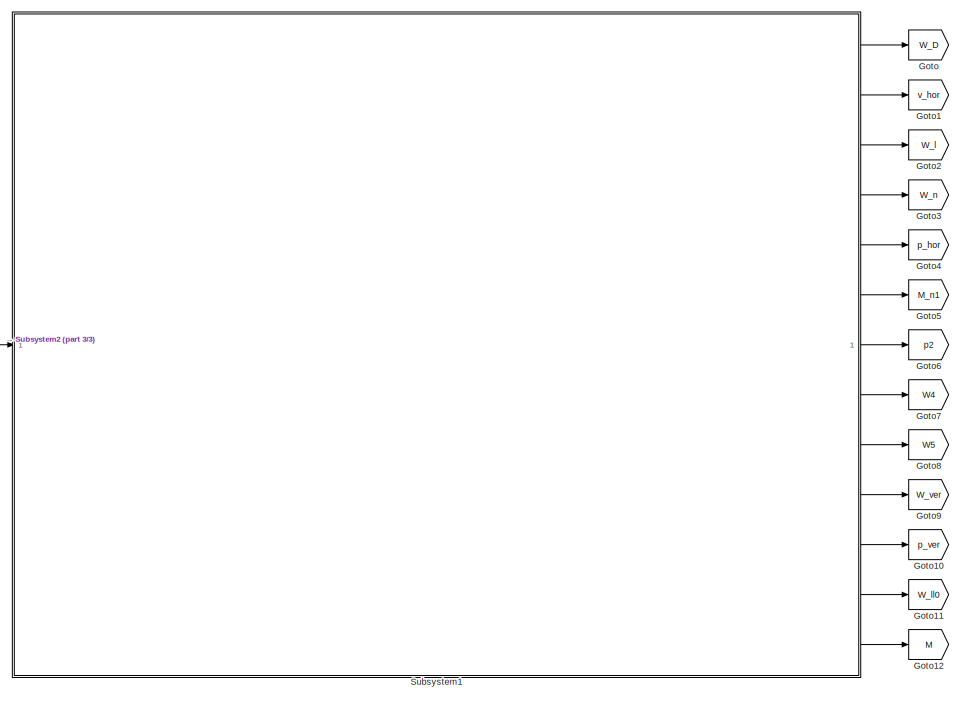
[diagram: root canvas - part 1/3, middle left region]
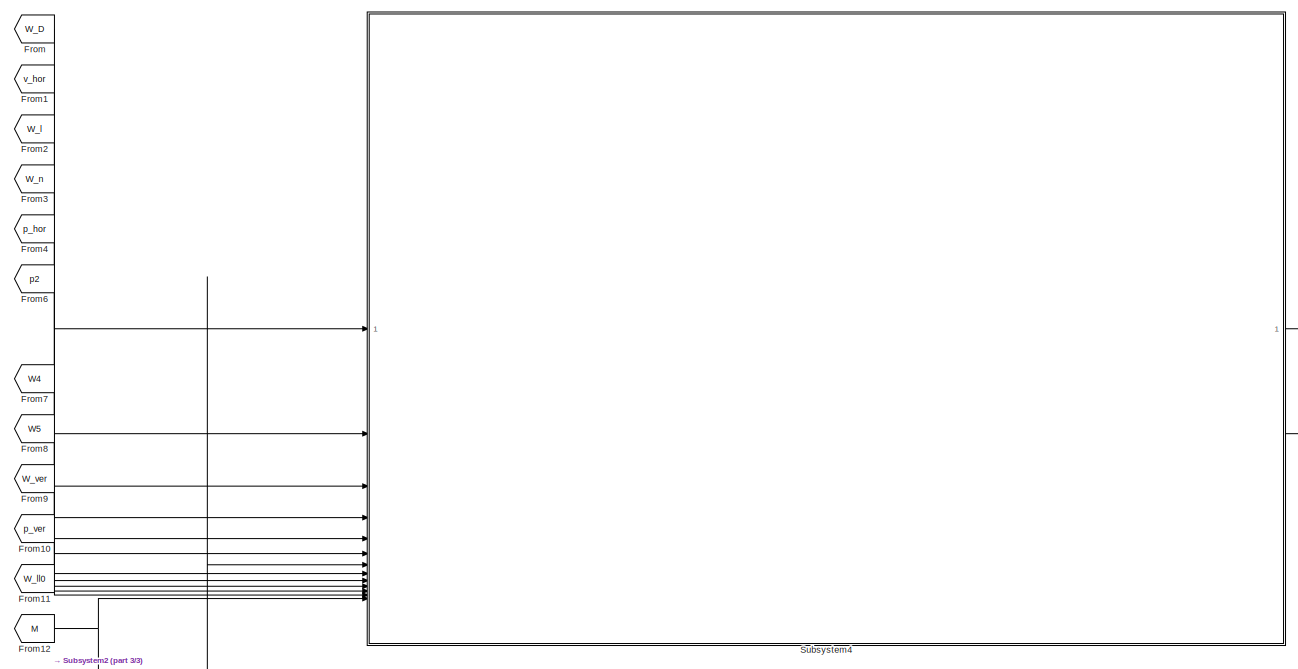
[diagram: root canvas - part 2/3, central region]
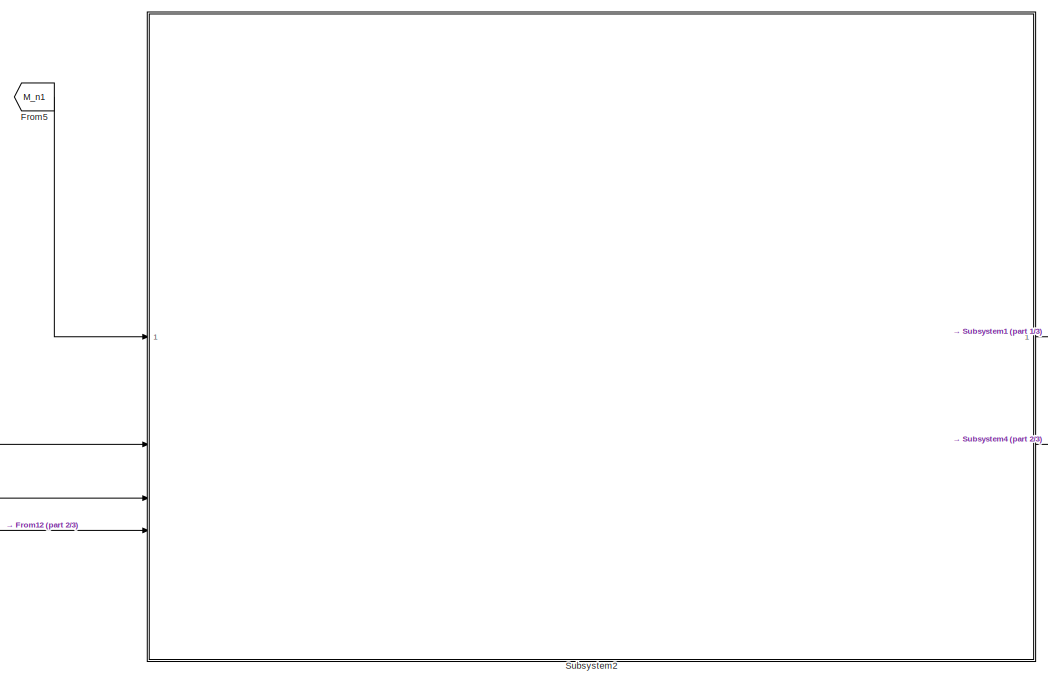
[diagram: root canvas - part 3/3, middle right region]
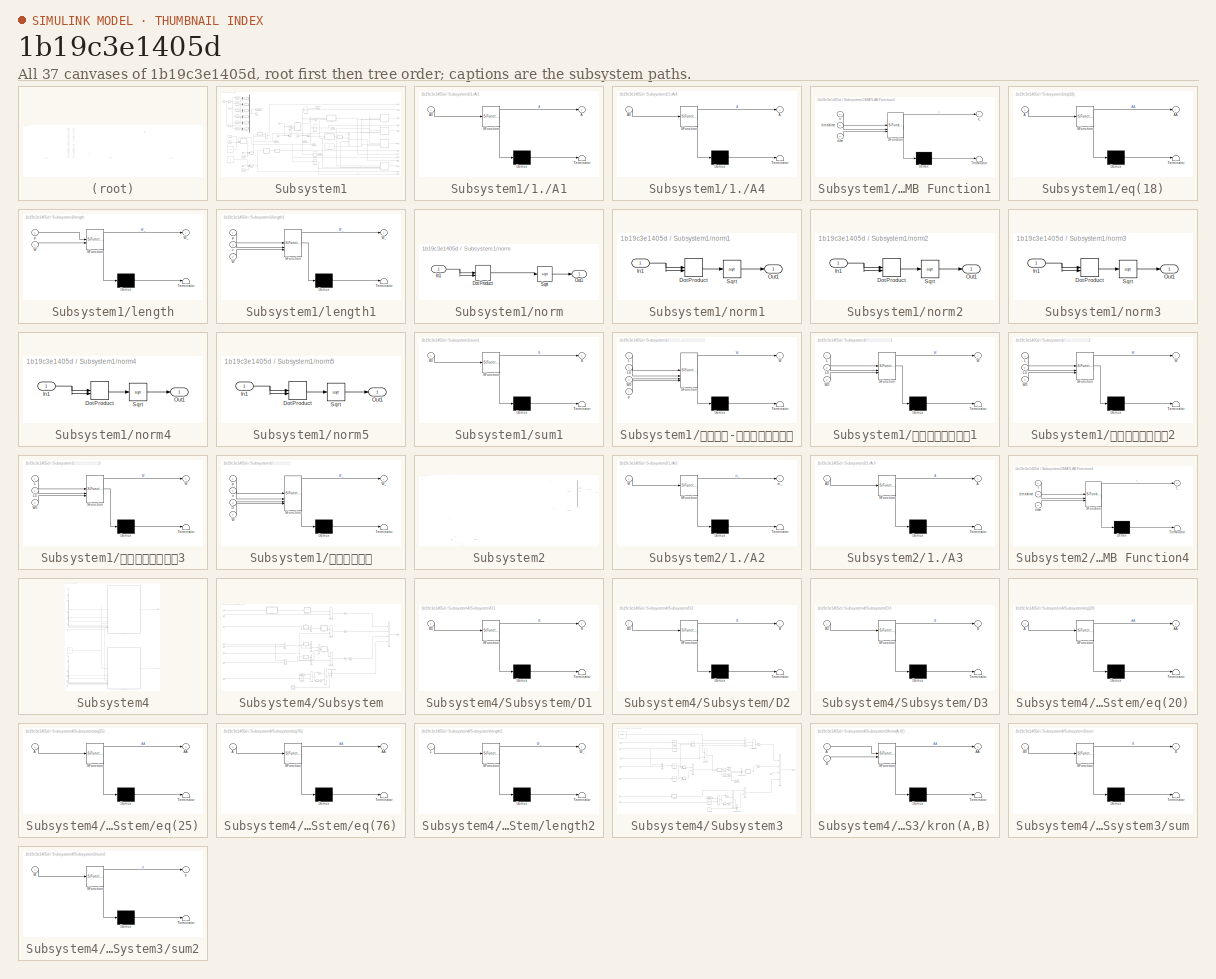
[diagram: thumbnail index - all 37 canvases of the model, root first then tree order]
MODEL slx_1b19c3e1405d
KIND model
CONFIG AbsTol = auto
CONFIG EnableMultiTasking = off
CONFIG FixedStep = 0.001
CONFIG MaxStep = auto
CONFIG MinStep = auto
CONFIG RelTol = 1e-3
CONFIG SampleTimeConstraint = Unconstrained
CONFIG SolverName = ode4
CONFIG StartTime = 0.0
CONFIG StopTime = 15
BLOCK [From] From
  GotoTag = W_D
BLOCK [From] From1
  GotoTag = v_hor
BLOCK [From] From10
  GotoTag = p_ver
BLOCK [From] From11
  GotoTag = W_ll0
BLOCK [From] From12
  GotoTag = M
BLOCK [From] From2
  GotoTag = W_l
BLOCK [From] From3
  GotoTag = W_n
BLOCK [From] From4
  GotoTag = p_hor
BLOCK [From] From5
  GotoTag = M_n1
BLOCK [From] From6
  GotoTag = p2
BLOCK [From] From7
  GotoTag = W4
BLOCK [From] From8
  GotoTag = W5
BLOCK [From] From9
  GotoTag = W_ver
BLOCK [Goto] Goto
  GotoTag = W_D
BLOCK [Goto] Goto1
  GotoTag = v_hor
BLOCK [Goto] Goto10
  GotoTag = p_ver
BLOCK [Goto] Goto11
  GotoTag = W_ll0
BLOCK [Goto] Goto12
  GotoTag = M
BLOCK [Goto] Goto2
  GotoTag = W_l
BLOCK [Goto] Goto3
  GotoTag = W_n
BLOCK [Goto] Goto4
  GotoTag = p_hor
BLOCK [Goto] Goto5
  GotoTag = M_n1
BLOCK [Goto] Goto6
  GotoTag = p2
BLOCK [Goto] Goto7
  GotoTag = W4
BLOCK [Goto] Goto8
  GotoTag = W5
BLOCK [Goto] Goto9
  GotoTag = W_ver
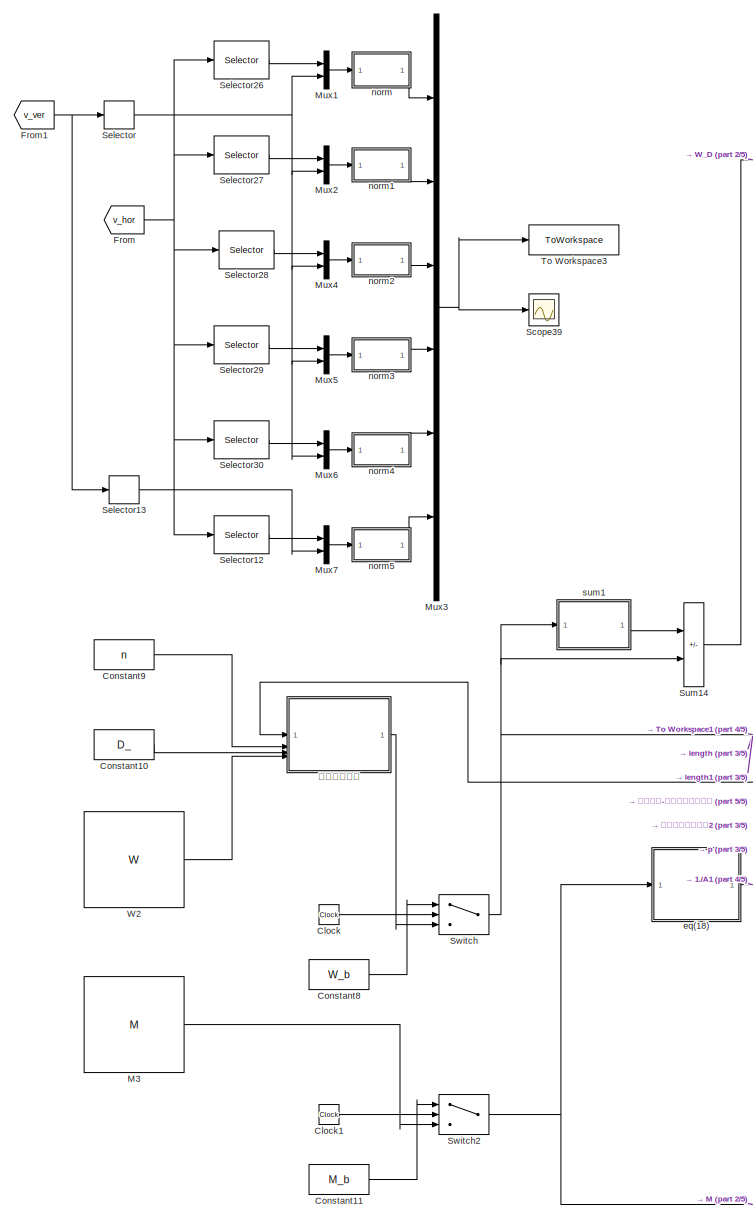
[diagram: Subsystem1 - part 1/5, left side, full height]
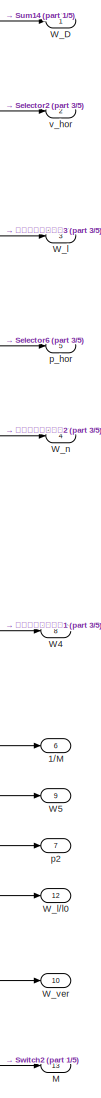
[diagram: Subsystem1 - part 2/5, right side, full height]
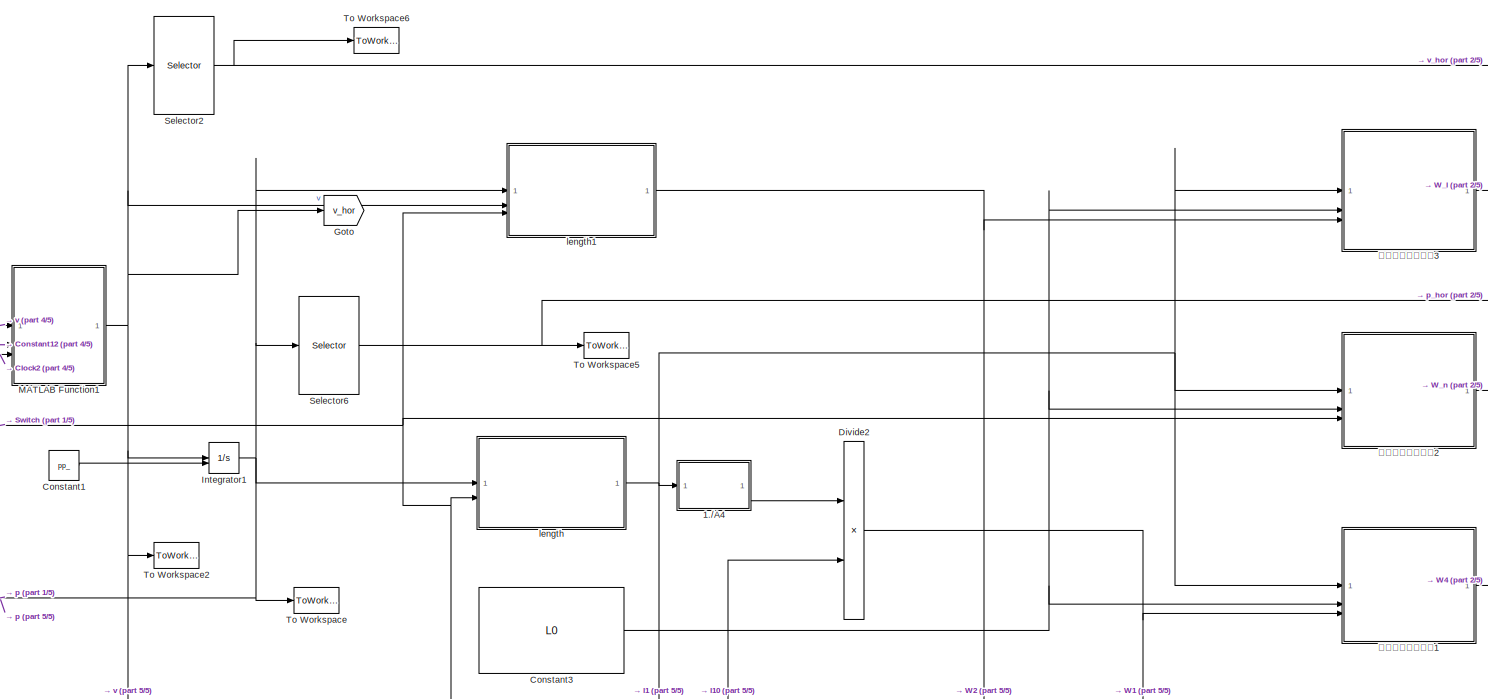
[diagram: Subsystem1 - part 3/5, middle right region]
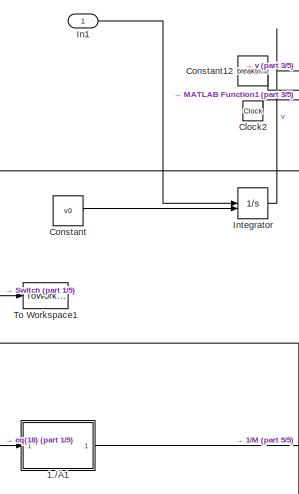
[diagram: Subsystem1 - part 4/5, central region]
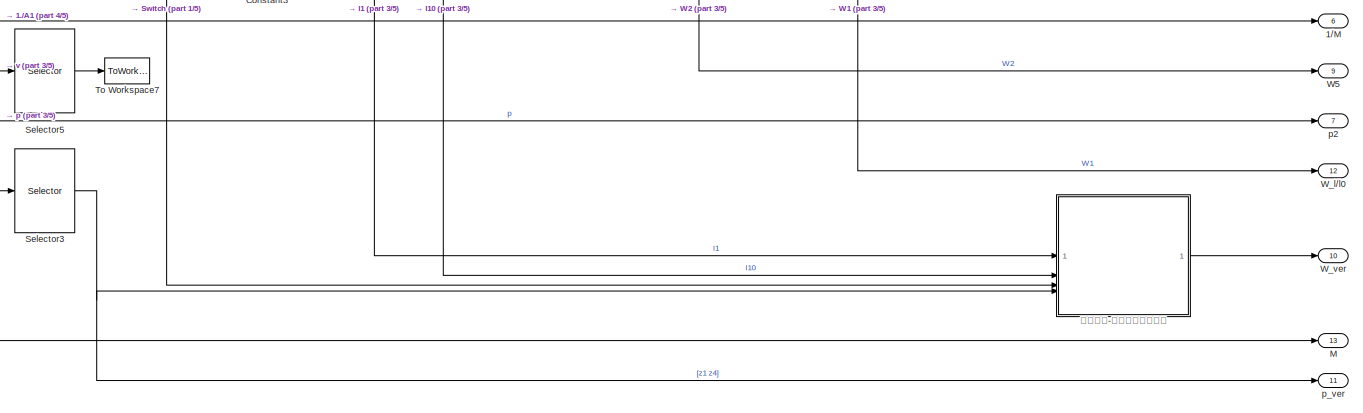
[diagram: Subsystem1 - part 5/5, bottom right region]
BLOCK [SubSystem] Subsystem1
BLOCK [SubSystem] Subsystem1/1.//A1
  ErrorFcn = Stateflow.Translate.translate
  PermitHierarchicalResolution = ExplicitOnly
  SFBlockType = MATLAB Function
  TreatAsAtomicUnit = on
BLOCK [Demux] Subsystem1/1.//A1/ Demux 
  Outputs = 1
BLOCK [S-Function] Subsystem1/1.//A1/ SFunction 
  EnableBusSupport = on
  FunctionName = sf_sfun
  PortCounts = [1 2]
  SFcnIsStateOwnerBlock = off
  SFunctionDeploymentMode = off
  Tag = Stateflow S-Function 4
BLOCK [Terminator] Subsystem1/1.//A1/ Terminator 
BLOCK [Outport] Subsystem1/1.//A1/A
BLOCK [Inport] Subsystem1/1.//A1/A0
BLOCK [SubSystem] Subsystem1/1.//A4
  ErrorFcn = Stateflow.Translate.translate
  PermitHierarchicalResolution = ExplicitOnly
  SFBlockType = MATLAB Function
  TreatAsAtomicUnit = on
BLOCK [Demux] Subsystem1/1.//A4/ Demux 
  Outputs = 1
BLOCK [S-Function] Subsystem1/1.//A4/ SFunction 
  EnableBusSupport = on
  FunctionName = sf_sfun
  PortCounts = [1 2]
  SFcnIsStateOwnerBlock = off
  SFunctionDeploymentMode = off
  Tag = Stateflow S-Function 3
BLOCK [Terminator] Subsystem1/1.//A4/ Terminator 
BLOCK [Outport] Subsystem1/1.//A4/A
BLOCK [Inport] Subsystem1/1.//A4/A0
BLOCK [Outport] Subsystem1/1//M
  Port = 6
BLOCK [Clock] Subsystem1/Clock
BLOCK [Clock] Subsystem1/Clock1
BLOCK [Clock] Subsystem1/Clock2
BLOCK [Constant] Subsystem1/Constant
  Value = v0
BLOCK [Constant] Subsystem1/Constant1
  Value = pp_
BLOCK [Constant] Subsystem1/Constant10
  Value = D_
BLOCK [Constant] Subsystem1/Constant11
  Value = M_b
BLOCK [Constant] Subsystem1/Constant12
  Value = breaktime
BLOCK [Constant] Subsystem1/Constant3
  Value = L0
BLOCK [Constant] Subsystem1/Constant8
  Value = W_b
BLOCK [Constant] Subsystem1/Constant9
  Value = n
BLOCK [Product] Subsystem1/Divide2
  Inputs = **
BLOCK [From] Subsystem1/From
  GotoTag = v_hor
BLOCK [From] Subsystem1/From1
  GotoTag = v_ver
BLOCK [Goto] Subsystem1/Goto
  GotoTag = v_hor
BLOCK [Inport] Subsystem1/In1
BLOCK [Integrator] Subsystem1/Integrator
  InitialConditionSource = external
BLOCK [Integrator] Subsystem1/Integrator1
  InitialConditionSource = external
BLOCK [Outport] Subsystem1/M
  Port = 13
BLOCK [Constant] Subsystem1/M3
  Value = M
BLOCK [SubSystem] Subsystem1/MATLAB Function1
  ErrorFcn = Stateflow.Translate.translate
  PermitHierarchicalResolution = ExplicitOnly
  SFBlockType = MATLAB Function
  TreatAsAtomicUnit = on
BLOCK [Demux] Subsystem1/MATLAB Function1/ Demux 
  Outputs = 1
BLOCK [S-Function] Subsystem1/MATLAB Function1/ SFunction 
  EnableBusSupport = on
  FunctionName = sf_sfun
  PortCounts = [3 2]
  SFcnIsStateOwnerBlock = off
  SFunctionDeploymentMode = off
  Tag = Stateflow S-Function 24
BLOCK [Terminator] Subsystem1/MATLAB Function1/ Terminator 
BLOCK [Inport] Subsystem1/MATLAB Function1/breaktime
  Port = 2
BLOCK [Inport] Subsystem1/MATLAB Function1/time
  Port = 3
BLOCK [Inport] Subsystem1/MATLAB Function1/v
BLOCK [Outport] Subsystem1/MATLAB Function1/v_
BLOCK [Mux] Subsystem1/Mux1
  DisplayOption = bar
  Inputs = 2
BLOCK [Mux] Subsystem1/Mux2
  DisplayOption = bar
  Inputs = 2
BLOCK [Mux] Subsystem1/Mux3
  DisplayOption = bar
  Inputs = 6
BLOCK [Mux] Subsystem1/Mux4
  DisplayOption = bar
  Inputs = 2
BLOCK [Mux] Subsystem1/Mux5
  DisplayOption = bar
  Inputs = 2
BLOCK [Mux] Subsystem1/Mux6
  DisplayOption = bar
  Inputs = 2
BLOCK [Mux] Subsystem1/Mux7
  DisplayOption = bar
  Inputs = 2
BLOCK [Scope] Subsystem1/Scope39
  Floating = off
  NumInputPorts = 1
  ScopeSpecificationString = Simulink.scopes.TimeScopeBlockCfg('CurrentConfiguration', extmgr.ConfigurationSet(extmgr.Configuration('Core','General UI',true),extmgr.Configuration('Core','Source UI',true),extmgr.Configuration('Sources','WiredSimulink',true,'DataLoggingVariableName','ScopeData1'),extmgr.Configuration('Visuals','Time Domain',true,'SerializedDisplays',{struct('MinYLimReal','-0.25448','MaxYLimReal','2.29035','YLab...<+1643ch>
BLOCK [Selector] Subsystem1/Selector
  IndexOptions = Index vector (dialog)
  Indices = 1
  InputPortWidth = 2
  OutputSizes = 1
BLOCK [Selector] Subsystem1/Selector12
  IndexOptions = Index vector (dialog)
  Indices = [13,14]
  InputPortWidth = 2*n+2
  OutputSizes = 1
BLOCK [Selector] Subsystem1/Selector13
  IndexOptions = Index vector (dialog)
  Indices = 2
  InputPortWidth = 2
  OutputSizes = 1
BLOCK [Selector] Subsystem1/Selector2
  IndexOptions = Index vector (dialog)
  Indices = [1:2*n]
  InputPortWidth = 2*n+2
  OutputSizes = 1
BLOCK [Selector] Subsystem1/Selector26
  IndexOptions = Index vector (dialog)
  Indices = [3,4]
  InputPortWidth = 2*n+2
  OutputSizes = 1
BLOCK [Selector] Subsystem1/Selector27
  IndexOptions = Index vector (dialog)
  Indices = [5,6]
  InputPortWidth = 2*n+2
  OutputSizes = 1
BLOCK [Selector] Subsystem1/Selector28
  IndexOptions = Index vector (dialog)
  Indices = [7,8]
  InputPortWidth = 2*n+2
  OutputSizes = 1
BLOCK [Selector] Subsystem1/Selector29
  IndexOptions = Index vector (dialog)
  Indices = [9,10]
  InputPortWidth = 2*n+2
  OutputSizes = 1
BLOCK [Selector] Subsystem1/Selector3
  IndexOptions = Index vector (dialog)
  Indices = [2*n+1 2*n+2]
  InputPortWidth = 2*n+2
  OutputSizes = 1
BLOCK [Selector] Subsystem1/Selector30
  IndexOptions = Index vector (dialog)
  Indices = [11,12]
  InputPortWidth = 2*n+2
  OutputSizes = 1
BLOCK [Selector] Subsystem1/Selector5
  IndexOptions = Index vector (dialog)
  Indices = [2*n+1 2*n+2]
  InputPortWidth = 2*n+2
  OutputSizes = 1
BLOCK [Selector] Subsystem1/Selector6
  IndexOptions = Index vector (dialog)
  Indices = [1:2*n]
  InputPortWidth = 2*n+2
  OutputSizes = 1
BLOCK [Sum] Subsystem1/Sum14
  IconShape = rectangular
  Inputs = +-
BLOCK [Switch] Subsystem1/Switch
  Criteria = u2 > Threshold
  InputSameDT = off
  SaturateOnIntegerOverflow = off
  Threshold = breaktime
BLOCK [Switch] Subsystem1/Switch2
  Criteria = u2 > Threshold
  InputSameDT = off
  SaturateOnIntegerOverflow = off
  Threshold = breaktime
BLOCK [ToWorkspace] Subsystem1/To Workspace
  FixptAsFi = on
  MaxDataPoints = inf
  SampleTime = -1
  SaveFormat = Timeseries
  VariableName = p
BLOCK [ToWorkspace] Subsystem1/To Workspace1
  FixptAsFi = on
  MaxDataPoints = inf
  SampleTime = -1
  SaveFormat = Timeseries
  VariableName = W
BLOCK [ToWorkspace] Subsystem1/To Workspace2
  FixptAsFi = on
  MaxDataPoints = inf
  SampleTime = -1
  SaveFormat = Timeseries
  VariableName = v
BLOCK [ToWorkspace] Subsystem1/To Workspace3
  FixptAsFi = on
  MaxDataPoints = inf
  SampleTime = -1
  SaveFormat = Timeseries
  VariableName = v_norm
BLOCK [ToWorkspace] Subsystem1/To Workspace5
  FixptAsFi = on
  MaxDataPoints = inf
  SampleTime = -1
  SaveFormat = Timeseries
  VariableName = position
BLOCK [ToWorkspace] Subsystem1/To Workspace6
  FixptAsFi = on
  MaxDataPoints = inf
  SampleTime = -1
  SaveFormat = Timeseries
  VariableName = velocity_h
BLOCK [ToWorkspace] Subsystem1/To Workspace7
  FixptAsFi = on
  MaxDataPoints = inf
  SampleTime = -1
  SaveFormat = Timeseries
  VariableName = velocity_v
BLOCK [Constant] Subsystem1/W2
  Value = W
BLOCK [Outport] Subsystem1/W4
  Port = 8
BLOCK [Outport] Subsystem1/W5
  Port = 9
BLOCK [Outport] Subsystem1/W_D
BLOCK [Outport] Subsystem1/W_l
  Port = 3
BLOCK [Outport] Subsystem1/W_l//l0
  Port = 12
BLOCK [Outport] Subsystem1/W_n
  Port = 4
BLOCK [Outport] Subsystem1/W_ver
  Port = 10
BLOCK [SubSystem] Subsystem1/eq(18)
  ErrorFcn = Stateflow.Translate.translate
  PermitHierarchicalResolution = ExplicitOnly
  SFBlockType = MATLAB Function
  TreatAsAtomicUnit = on
BLOCK [Demux] Subsystem1/eq(18)/ Demux 
  Outputs = 1
BLOCK [S-Function] Subsystem1/eq(18)/ SFunction 
  EnableBusSupport = on
  FunctionName = sf_sfun
  PortCounts = [1 2]
  SFcnIsStateOwnerBlock = off
  SFunctionDeploymentMode = off
  Tag = Stateflow S-Function 7
BLOCK [Terminator] Subsystem1/eq(18)/ Terminator 
BLOCK [Inport] Subsystem1/eq(18)/A
BLOCK [Outport] Subsystem1/eq(18)/AA
BLOCK [SubSystem] Subsystem1/length
  ErrorFcn = Stateflow.Translate.translate
  PermitHierarchicalResolution = ExplicitOnly
  SFBlockType = MATLAB Function
  TreatAsAtomicUnit = on
BLOCK [Demux] Subsystem1/length/ Demux 
  Outputs = 1
BLOCK [S-Function] Subsystem1/length/ SFunction 
  EnableBusSupport = on
  FunctionName = sf_sfun
  PortCounts = [2 2]
  SFcnIsStateOwnerBlock = off
  SFunctionDeploymentMode = off
  Tag = Stateflow S-Function 1
BLOCK [Terminator] Subsystem1/length/ Terminator 
BLOCK [Inport] Subsystem1/length/W
  Port = 2
BLOCK [Outport] Subsystem1/length/W_
BLOCK [Inport] Subsystem1/length/p
BLOCK [SubSystem] Subsystem1/length1
  ErrorFcn = Stateflow.Translate.translate
  PermitHierarchicalResolution = ExplicitOnly
  SFBlockType = MATLAB Function
  TreatAsAtomicUnit = on
BLOCK [Demux] Subsystem1/length1/ Demux 
  Outputs = 1
BLOCK [S-Function] Subsystem1/length1/ SFunction 
  EnableBusSupport = on
  FunctionName = sf_sfun
  PortCounts = [3 2]
  SFcnIsStateOwnerBlock = off
  SFunctionDeploymentMode = off
  Tag = Stateflow S-Function 5
BLOCK [Terminator] Subsystem1/length1/ Terminator 
BLOCK [Inport] Subsystem1/length1/W
  Port = 3
BLOCK [Outport] Subsystem1/length1/W_
BLOCK [Inport] Subsystem1/length1/p
BLOCK [Inport] Subsystem1/length1/v
  Port = 2
BLOCK [SubSystem] Subsystem1/norm
BLOCK [DotProduct] Subsystem1/norm/Dot Product
  OutDataTypeStr = Inherit: Inherit via internal rule
BLOCK [Inport] Subsystem1/norm/In1
BLOCK [Outport] Subsystem1/norm/Out1
BLOCK [Sqrt] Subsystem1/norm/Sqrt
BLOCK [SubSystem] Subsystem1/norm1
BLOCK [DotProduct] Subsystem1/norm1/Dot Product
  OutDataTypeStr = Inherit: Inherit via internal rule
BLOCK [Inport] Subsystem1/norm1/In1
BLOCK [Outport] Subsystem1/norm1/Out1
BLOCK [Sqrt] Subsystem1/norm1/Sqrt
BLOCK [SubSystem] Subsystem1/norm2
BLOCK [DotProduct] Subsystem1/norm2/Dot Product
  OutDataTypeStr = Inherit: Inherit via internal rule
BLOCK [Inport] Subsystem1/norm2/In1
BLOCK [Outport] Subsystem1/norm2/Out1
BLOCK [Sqrt] Subsystem1/norm2/Sqrt
BLOCK [SubSystem] Subsystem1/norm3
BLOCK [DotProduct] Subsystem1/norm3/Dot Product
  OutDataTypeStr = Inherit: Inherit via internal rule
BLOCK [Inport] Subsystem1/norm3/In1
BLOCK [Outport] Subsystem1/norm3/Out1
BLOCK [Sqrt] Subsystem1/norm3/Sqrt
BLOCK [SubSystem] Subsystem1/norm4
BLOCK [DotProduct] Subsystem1/norm4/Dot Product
  OutDataTypeStr = Inherit: Inherit via internal rule
BLOCK [Inport] Subsystem1/norm4/In1
BLOCK [Outport] Subsystem1/norm4/Out1
BLOCK [Sqrt] Subsystem1/norm4/Sqrt
BLOCK [SubSystem] Subsystem1/norm5
BLOCK [DotProduct] Subsystem1/norm5/Dot Product
  OutDataTypeStr = Inherit: Inherit via internal rule
BLOCK [Inport] Subsystem1/norm5/In1
BLOCK [Outport] Subsystem1/norm5/Out1
BLOCK [Sqrt] Subsystem1/norm5/Sqrt
BLOCK [Outport] Subsystem1/p2
  Port = 7
BLOCK [Outport] Subsystem1/p_hor
  Port = 5
BLOCK [Outport] Subsystem1/p_ver
  Port = 11
BLOCK [SubSystem] Subsystem1/sum1
  ErrorFcn = Stateflow.Translate.translate
  PermitHierarchicalResolution = ExplicitOnly
  SFBlockType = MATLAB Function
  TreatAsAtomicUnit = on
BLOCK [Demux] Subsystem1/sum1/ Demux 
  Outputs = 1
BLOCK [S-Function] Subsystem1/sum1/ SFunction 
  EnableBusSupport = on
  FunctionName = sf_sfun
  PortCounts = [1 2]
  SFcnIsStateOwnerBlock = off
  SFunctionDeploymentMode = off
  Tag = Stateflow S-Function 22
BLOCK [Terminator] Subsystem1/sum1/ Terminator 
BLOCK [Outport] Subsystem1/sum1/B
BLOCK [Inport] Subsystem1/sum1/B0
BLOCK [Outport] Subsystem1/v_hor
  Port = 2
BLOCK [SubSystem] Subsystem1/吊挂弹簧-负形变量限制模块
  ErrorFcn = Stateflow.Translate.translate
  PermitHierarchicalResolution = ExplicitOnly
  SFBlockType = MATLAB Function
  TreatAsAtomicUnit = on
BLOCK [Demux] Subsystem1/吊挂弹簧-负形变量限制模块/ Demux 
  Outputs = 1
BLOCK [S-Function] Subsystem1/吊挂弹簧-负形变量限制模块/ SFunction 
  EnableBusSupport = on
  FunctionName = sf_sfun
  PortCounts = [4 2]
  SFcnIsStateOwnerBlock = off
  SFunctionDeploymentMode = off
  Tag = Stateflow S-Function 13
BLOCK [Terminator] Subsystem1/吊挂弹簧-负形变量限制模块/ Terminator 
BLOCK [Inport] Subsystem1/吊挂弹簧-负形变量限制模块/L
BLOCK [Inport] Subsystem1/吊挂弹簧-负形变量限制模块/L0
  Port = 2
BLOCK [Outport] Subsystem1/吊挂弹簧-负形变量限制模块/W
BLOCK [Inport] Subsystem1/吊挂弹簧-负形变量限制模块/W0
  Port = 3
BLOCK [Inport] Subsystem1/吊挂弹簧-负形变量限制模块/p
  Port = 4
BLOCK [SubSystem] Subsystem1/负形变量限制模块1
  ErrorFcn = Stateflow.Translate.translate
  PermitHierarchicalResolution = ExplicitOnly
  SFBlockType = MATLAB Function
  TreatAsAtomicUnit = on
BLOCK [Demux] Subsystem1/负形变量限制模块1/ Demux 
  Outputs = 1
BLOCK [S-Function] Subsystem1/负形变量限制模块1/ SFunction 
  EnableBusSupport = on
  FunctionName = sf_sfun
  PortCounts = [3 2]
  SFcnIsStateOwnerBlock = off
  SFunctionDeploymentMode = off
  Tag = Stateflow S-Function 14
BLOCK [Terminator] Subsystem1/负形变量限制模块1/ Terminator 
BLOCK [Inport] Subsystem1/负形变量限制模块1/L
BLOCK [Inport] Subsystem1/负形变量限制模块1/L0
  Port = 2
BLOCK [Outport] Subsystem1/负形变量限制模块1/W
BLOCK [Inport] Subsystem1/负形变量限制模块1/W0
  Port = 3
BLOCK [SubSystem] Subsystem1/负形变量限制模块2
  ErrorFcn = Stateflow.Translate.translate
  PermitHierarchicalResolution = ExplicitOnly
  SFBlockType = MATLAB Function
  TreatAsAtomicUnit = on
BLOCK [Demux] Subsystem1/负形变量限制模块2/ Demux 
  Outputs = 1
BLOCK [S-Function] Subsystem1/负形变量限制模块2/ SFunction 
  EnableBusSupport = on
  FunctionName = sf_sfun
  PortCounts = [3 2]
  SFcnIsStateOwnerBlock = off
  SFunctionDeploymentMode = off
  Tag = Stateflow S-Function 16
BLOCK [Terminator] Subsystem1/负形变量限制模块2/ Terminator 
BLOCK [Inport] Subsystem1/负形变量限制模块2/L
BLOCK [Inport] Subsystem1/负形变量限制模块2/L0
  Port = 2
BLOCK [Outport] Subsystem1/负形变量限制模块2/W
BLOCK [Inport] Subsystem1/负形变量限制模块2/W0
  Port = 3
BLOCK [SubSystem] Subsystem1/负形变量限制模块3
  ErrorFcn = Stateflow.Translate.translate
  PermitHierarchicalResolution = ExplicitOnly
  SFBlockType = MATLAB Function
  TreatAsAtomicUnit = on
BLOCK [Demux] Subsystem1/负形变量限制模块3/ Demux 
  Outputs = 1
BLOCK [S-Function] Subsystem1/负形变量限制模块3/ SFunction 
  EnableBusSupport = on
  FunctionName = sf_sfun
  PortCounts = [3 2]
  SFcnIsStateOwnerBlock = off
  SFunctionDeploymentMode = off
  Tag = Stateflow S-Function 17
BLOCK [Terminator] Subsystem1/负形变量限制模块3/ Terminator 
BLOCK [Inport] Subsystem1/负形变量限制模块3/L
BLOCK [Inport] Subsystem1/负形变量限制模块3/L0
  Port = 2
BLOCK [Outport] Subsystem1/负形变量限制模块3/W
BLOCK [Inport] Subsystem1/负形变量限制模块3/W0
  Port = 3
BLOCK [SubSystem] Subsystem1/距离矩阵计算
  ErrorFcn = Stateflow.Translate.translate
  PermitHierarchicalResolution = ExplicitOnly
  SFBlockType = MATLAB Function
  TreatAsAtomicUnit = on
BLOCK [Demux] Subsystem1/距离矩阵计算/ Demux 
  Outputs = 1
BLOCK [S-Function] Subsystem1/距离矩阵计算/ SFunction 
  EnableBusSupport = on
  FunctionName = sf_sfun
  PortCounts = [4 2]
  SFcnIsStateOwnerBlock = off
  SFunctionDeploymentMode = off
  Tag = Stateflow S-Function 21
BLOCK [Terminator] Subsystem1/距离矩阵计算/ Terminator 
BLOCK [Inport] Subsystem1/距离矩阵计算/D
  Port = 3
BLOCK [Inport] Subsystem1/距离矩阵计算/W
  Port = 4
BLOCK [Outport] Subsystem1/距离矩阵计算/W_
BLOCK [Inport] Subsystem1/距离矩阵计算/n
  Port = 2
BLOCK [Inport] Subsystem1/距离矩阵计算/p
BLOCK [SubSystem] Subsystem2
BLOCK [Outport] Subsystem2/-重力
  Port = 2
BLOCK [SubSystem] Subsystem2/1.//A2
  ErrorFcn = Stateflow.Translate.translate
  PermitHierarchicalResolution = ExplicitOnly
  SFBlockType = MATLAB Function
  TreatAsAtomicUnit = on
BLOCK [Demux] Subsystem2/1.//A2/ Demux 
  Outputs = 1
BLOCK [S-Function] Subsystem2/1.//A2/ SFunction 
  EnableBusSupport = on
  FunctionName = sf_sfun
  PortCounts = [1 2]
  SFcnIsStateOwnerBlock = off
  SFunctionDeploymentMode = off
  Tag = Stateflow S-Function 23
BLOCK [Terminator] Subsystem2/1.//A2/ Terminator 
BLOCK [Inport] Subsystem2/1.//A2/M
BLOCK [Outport] Subsystem2/1.//A2/m_
BLOCK [SubSystem] Subsystem2/1.//A3
  ErrorFcn = Stateflow.Translate.translate
  PermitHierarchicalResolution = ExplicitOnly
  SFBlockType = MATLAB Function
  TreatAsAtomicUnit = on
BLOCK [Demux] Subsystem2/1.//A3/ Demux 
  Outputs = 1
BLOCK [S-Function] Subsystem2/1.//A3/ SFunction 
  EnableBusSupport = on
  FunctionName = sf_sfun
  PortCounts = [1 2]
  SFcnIsStateOwnerBlock = off
  SFunctionDeploymentMode = off
  Tag = Stateflow S-Function 8
BLOCK [Terminator] Subsystem2/1.//A3/ Terminator 
BLOCK [Outport] Subsystem2/1.//A3/A
BLOCK [Inport] Subsystem2/1.//A3/A0
BLOCK [Clock] Subsystem2/Clock3
BLOCK [Constant] Subsystem2/Constant5
  Value = breaktime
BLOCK [Inport] Subsystem2/F合力
  Port = 3
BLOCK [Inport] Subsystem2/In1
BLOCK [Inport] Subsystem2/In2
  Port = 2
BLOCK [Inport] Subsystem2/M
  Port = 4
BLOCK [SubSystem] Subsystem2/MATLAB Function4
  ErrorFcn = Stateflow.Translate.translate
  PermitHierarchicalResolution = ExplicitOnly
  SFBlockType = MATLAB Function
  TreatAsAtomicUnit = on
BLOCK [Demux] Subsystem2/MATLAB Function4/ Demux 
  Outputs = 1
BLOCK [S-Function] Subsystem2/MATLAB Function4/ SFunction 
  EnableBusSupport = on
  FunctionName = sf_sfun
  PortCounts = [3 2]
  SFcnIsStateOwnerBlock = off
  SFunctionDeploymentMode = off
  Tag = Stateflow S-Function 18
BLOCK [Terminator] Subsystem2/MATLAB Function4/ Terminator 
BLOCK [Inport] Subsystem2/MATLAB Function4/breaktime
  Port = 2
BLOCK [Inport] Subsystem2/MATLAB Function4/f
BLOCK [Outport] Subsystem2/MATLAB Function4/f_
BLOCK [Inport] Subsystem2/MATLAB Function4/time
  Port = 3
BLOCK [Product] Subsystem2/Matrix Multiply13
  Multiplication = Matrix(*)
BLOCK [Product] Subsystem2/Matrix Multiply14
  Multiplication = Matrix(*)
BLOCK [Product] Subsystem2/Matrix Multiply6
  Multiplication = Matrix(*)
BLOCK [Mux] Subsystem2/Mux
  DisplayOption = bar
  Inputs = 2
BLOCK [Scope] Subsystem2/Scope6
  Floating = off
  NumInputPorts = 1
  ScopeSpecificationString = Simulink.scopes.TimeScopeBlockCfg('CurrentConfiguration', extmgr.ConfigurationSet(extmgr.Configuration('Core','General UI',true),extmgr.Configuration('Core','Source UI',true),extmgr.Configuration('Sources','WiredSimulink',true,'DataLoggingVariableName','ScopeData1'),extmgr.Configuration('Visuals','Time Domain',true,'SerializedDisplays',{struct('MinYLimReal','-164.88947','MaxYLimReal','324.0062','Y...<+1798ch>
BLOCK [Outport] Subsystem2/f_
BLOCK [Constant] Subsystem2/g
  Value = g*[-1;-1]
BLOCK [SubSystem] Subsystem4
BLOCK [Outport] Subsystem4/F合力
  Port = 2
BLOCK [Inport] Subsystem4/In10
  Port = 10
BLOCK [Inport] Subsystem4/In11
  Port = 11
BLOCK [Inport] Subsystem4/In12
  Port = 12
BLOCK [Inport] Subsystem4/In2
  Port = 2
BLOCK [Inport] Subsystem4/In3
  Port = 3
BLOCK [Inport] Subsystem4/In4
  Port = 4
BLOCK [Inport] Subsystem4/In5
  Port = 5
BLOCK [Inport] Subsystem4/In6
  Port = 6
BLOCK [Inport] Subsystem4/In7
  Port = 7
BLOCK [Inport] Subsystem4/In8
  Port = 8
BLOCK [Inport] Subsystem4/In9
  Port = 9
BLOCK [Constant] Subsystem4/K
  Value = K
BLOCK [Inport] Subsystem4/L
BLOCK [Inport] Subsystem4/M
  Port = 13
BLOCK [Outport] Subsystem4/Out1
BLOCK [SubSystem] Subsystem4/Subsystem
BLOCK [Constant] Subsystem4/Subsystem/Constant4
  Value = zeros(2*n-2,1)
BLOCK [SubSystem] Subsystem4/Subsystem/D1
  ErrorFcn = Stateflow.Translate.translate
  PermitHierarchicalResolution = ExplicitOnly
  SFBlockType = MATLAB Function
  TreatAsAtomicUnit = on
BLOCK [Demux] Subsystem4/Subsystem/D1/ Demux 
  Outputs = 1
BLOCK [S-Function] Subsystem4/Subsystem/D1/ SFunction 
  EnableBusSupport = on
  FunctionName = sf_sfun
  PortCounts = [1 2]
  SFcnIsStateOwnerBlock = off
  SFunctionDeploymentMode = off
  Tag = Stateflow S-Function 11
BLOCK [Terminator] Subsystem4/Subsystem/D1/ Terminator 
BLOCK [Outport] Subsystem4/Subsystem/D1/B
BLOCK [Inport] Subsystem4/Subsystem/D1/B0
BLOCK [SubSystem] Subsystem4/Subsystem/D2
  ErrorFcn = Stateflow.Translate.translate
  PermitHierarchicalResolution = ExplicitOnly
  SFBlockType = MATLAB Function
  TreatAsAtomicUnit = on
BLOCK [Demux] Subsystem4/Subsystem/D2/ Demux 
  Outputs = 1
BLOCK [S-Function] Subsystem4/Subsystem/D2/ SFunction 
  EnableBusSupport = on
  FunctionName = sf_sfun
  PortCounts = [1 2]
  SFcnIsStateOwnerBlock = off
  SFunctionDeploymentMode = off
  Tag = Stateflow S-Function 6
BLOCK [Terminator] Subsystem4/Subsystem/D2/ Terminator 
BLOCK [Outport] Subsystem4/Subsystem/D2/B
BLOCK [Inport] Subsystem4/Subsystem/D2/B0
BLOCK [SubSystem] Subsystem4/Subsystem/D3
  ErrorFcn = Stateflow.Translate.translate
  PermitHierarchicalResolution = ExplicitOnly
  SFBlockType = MATLAB Function
  TreatAsAtomicUnit = on
BLOCK [Demux] Subsystem4/Subsystem/D3/ Demux 
  Outputs = 1
BLOCK [S-Function] Subsystem4/Subsystem/D3/ SFunction 
  EnableBusSupport = on
  FunctionName = sf_sfun
  PortCounts = [1 2]
  SFcnIsStateOwnerBlock = off
  SFunctionDeploymentMode = off
  Tag = Stateflow S-Function 15
BLOCK [Terminator] Subsystem4/Subsystem/D3/ Terminator 
BLOCK [Outport] Subsystem4/Subsystem/D3/B
BLOCK [Inport] Subsystem4/Subsystem/D3/B0
BLOCK [Derivative] Subsystem4/Subsystem/Derivative2
BLOCK [Product] Subsystem4/Subsystem/Divide5
  Inputs = **
BLOCK [Product] Subsystem4/Subsystem/Divide6
  Inputs = **
BLOCK [FromWorkspace] Subsystem4/Subsystem/From Workspace
  VariableName = pd_hor
BLOCK [Gain] Subsystem4/Subsystem/Gain
BLOCK [Gain] Subsystem4/Subsystem/Gain1
  Gain = 7
BLOCK [Gain] Subsystem4/Subsystem/Gain6
BLOCK [Gain] Subsystem4/Subsystem/Gain7
  Gain = 5
BLOCK [Inport] Subsystem4/Subsystem/In2
  Port = 2
BLOCK [Inport] Subsystem4/Subsystem/In3
  Port = 3
BLOCK [Inport] Subsystem4/Subsystem/In4
  Port = 4
BLOCK [Inport] Subsystem4/Subsystem/In5
  Port = 5
BLOCK [Inport] Subsystem4/Subsystem/In6
  Port = 6
BLOCK [Inport] Subsystem4/Subsystem/In7
  Port = 7
BLOCK [Inport] Subsystem4/Subsystem/In8
  Port = 8
BLOCK [Inport] Subsystem4/Subsystem/L
BLOCK [Product] Subsystem4/Subsystem/Matrix Multiply1
  Multiplication = Matrix(*)
BLOCK [Product] Subsystem4/Subsystem/Matrix Multiply4
  Multiplication = Matrix(*)
BLOCK [Product] Subsystem4/Subsystem/Matrix Multiply5
  Multiplication = Matrix(*)
BLOCK [Outport] Subsystem4/Subsystem/Out1
BLOCK [Saturate] Subsystem4/Subsystem/Saturation
  LowerLimit = -100
  UpperLimit = 100
BLOCK [Selector] Subsystem4/Subsystem/Selector4
  IndexOptions = Index vector (dialog)
  Indices = [1 2]
  InputPortWidth = 2*n+2
  OutputSizes = 1
BLOCK [Sum] Subsystem4/Subsystem/Sum10
  IconShape = rectangular
  Inputs = +-
BLOCK [Sum] Subsystem4/Subsystem/Sum2
  IconShape = rectangular
  Inputs = +-
BLOCK [Sum] Subsystem4/Subsystem/Sum3
  IconShape = rectangular
  Inputs = ---+
BLOCK [Sum] Subsystem4/Subsystem/Sum4
  IconShape = rectangular
  Inputs = +-
BLOCK [Sum] Subsystem4/Subsystem/Sum6
  IconShape = rectangular
BLOCK [Sum] Subsystem4/Subsystem/Sum8
  IconShape = rectangular
  Inputs = +-
BLOCK [Sum] Subsystem4/Subsystem/Sum9
  IconShape = rectangular
  Inputs = +-
BLOCK [Concatenate] Subsystem4/Subsystem/Vector Concatenate
BLOCK [SubSystem] Subsystem4/Subsystem/eq(20)
  ErrorFcn = Stateflow.Translate.translate
  PermitHierarchicalResolution = ExplicitOnly
  SFBlockType = MATLAB Function
  TreatAsAtomicUnit = on
BLOCK [Demux] Subsystem4/Subsystem/eq(20)/ Demux 
  Outputs = 1
BLOCK [S-Function] Subsystem4/Subsystem/eq(20)/ SFunction 
  EnableBusSupport = on
  FunctionName = sf_sfun
  PortCounts = [1 2]
  SFcnIsStateOwnerBlock = off
  SFunctionDeploymentMode = off
  Tag = Stateflow S-Function 9
BLOCK [Terminator] Subsystem4/Subsystem/eq(20)/ Terminator 
BLOCK [Inport] Subsystem4/Subsystem/eq(20)/A
BLOCK [Outport] Subsystem4/Subsystem/eq(20)/AA
BLOCK [SubSystem] Subsystem4/Subsystem/eq(25)
  ErrorFcn = Stateflow.Translate.translate
  PermitHierarchicalResolution = ExplicitOnly
  SFBlockType = MATLAB Function
  TreatAsAtomicUnit = on
BLOCK [Demux] Subsystem4/Subsystem/eq(25)/ Demux 
  Outputs = 1
BLOCK [S-Function] Subsystem4/Subsystem/eq(25)/ SFunction 
  EnableBusSupport = on
  FunctionName = sf_sfun
  PortCounts = [1 2]
  SFcnIsStateOwnerBlock = off
  SFunctionDeploymentMode = off
  Tag = Stateflow S-Function 10
BLOCK [Terminator] Subsystem4/Subsystem/eq(25)/ Terminator 
BLOCK [Inport] Subsystem4/Subsystem/eq(25)/A
BLOCK [Outport] Subsystem4/Subsystem/eq(25)/AA
BLOCK [SubSystem] Subsystem4/Subsystem/eq(76)
  ErrorFcn = Stateflow.Translate.translate
  PermitHierarchicalResolution = ExplicitOnly
  SFBlockType = MATLAB Function
  TreatAsAtomicUnit = on
BLOCK [Demux] Subsystem4/Subsystem/eq(76)/ Demux 
  Outputs = 1
BLOCK [S-Function] Subsystem4/Subsystem/eq(76)/ SFunction 
  EnableBusSupport = on
  FunctionName = sf_sfun
  PortCounts = [1 2]
  SFcnIsStateOwnerBlock = off
  SFunctionDeploymentMode = off
  Tag = Stateflow S-Function 12
BLOCK [Terminator] Subsystem4/Subsystem/eq(76)/ Terminator 
BLOCK [Inport] Subsystem4/Subsystem/eq(76)/A
BLOCK [Outport] Subsystem4/Subsystem/eq(76)/AA
BLOCK [SubSystem] Subsystem4/Subsystem/length2
  ErrorFcn = Stateflow.Translate.translate
  PermitHierarchicalResolution = ExplicitOnly
  SFBlockType = MATLAB Function
  TreatAsAtomicUnit = on
BLOCK [Demux] Subsystem4/Subsystem/length2/ Demux 
  Outputs = 1
BLOCK [S-Function] Subsystem4/Subsystem/length2/ SFunction 
  EnableBusSupport = on
  FunctionName = sf_sfun
  PortCounts = [1 2]
  SFcnIsStateOwnerBlock = off
  SFunctionDeploymentMode = off
  Tag = Stateflow S-Function 2
BLOCK [Terminator] Subsystem4/Subsystem/length2/ Terminator 
BLOCK [Inport] Subsystem4/Subsystem/length2/L
BLOCK [Outport] Subsystem4/Subsystem/length2/W_
BLOCK [Gain] Subsystem4/Subsystem/mu
  Gain = 5
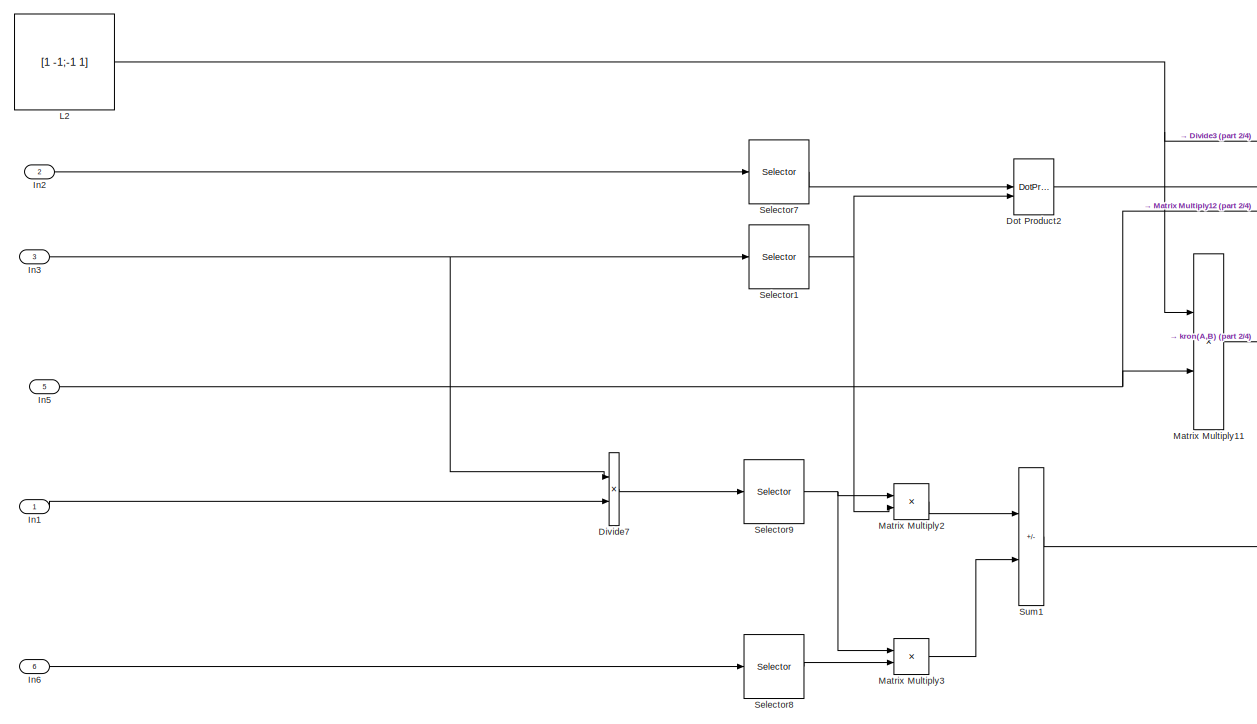
[diagram: Subsystem4/Subsystem3 - part 1/4, top left region]
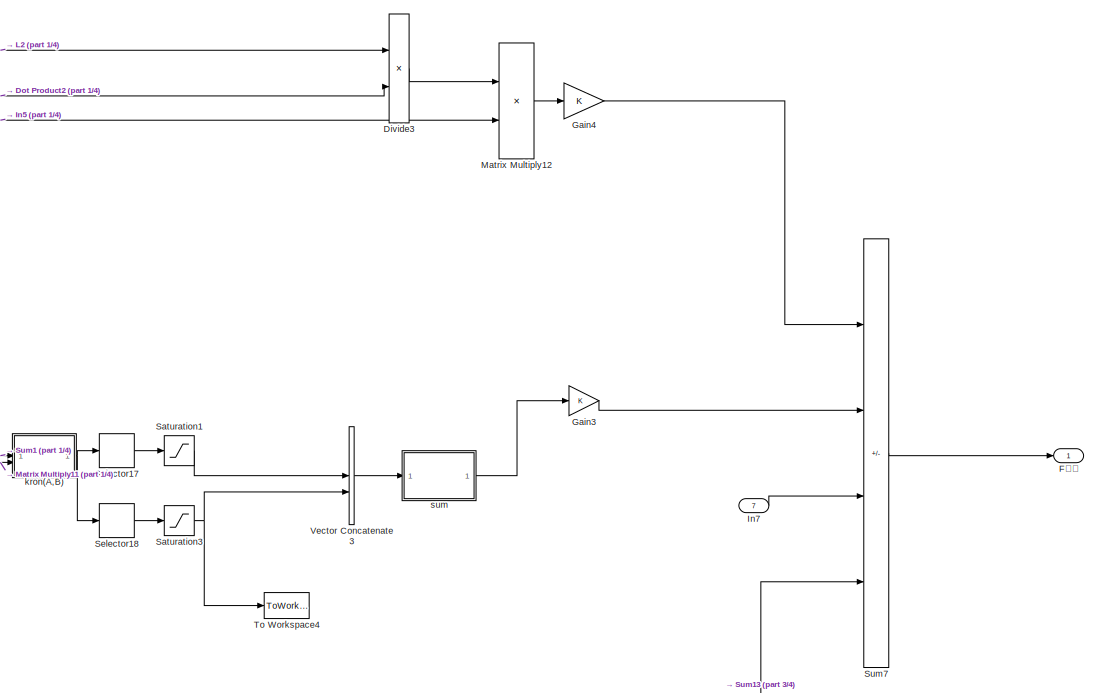
[diagram: Subsystem4/Subsystem3 - part 2/4, middle right region]
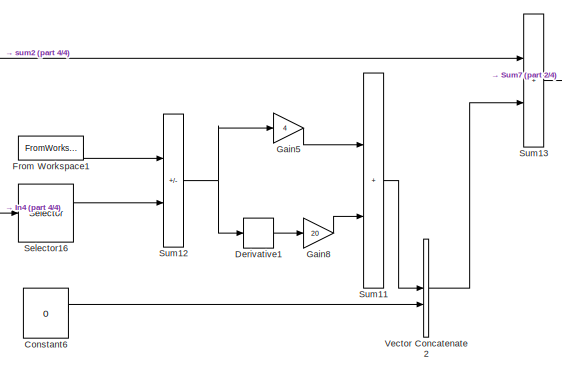
[diagram: Subsystem4/Subsystem3 - part 3/4, bottom center region]
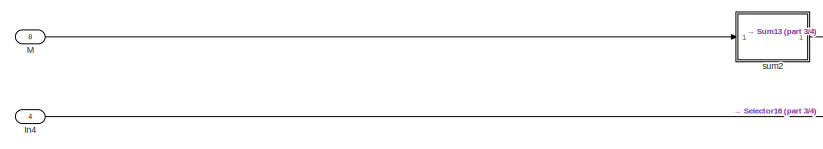
[diagram: Subsystem4/Subsystem3 - part 4/4, bottom left region]
BLOCK [SubSystem] Subsystem4/Subsystem3
BLOCK [Constant] Subsystem4/Subsystem3/Constant6
  Value = 0
BLOCK [Derivative] Subsystem4/Subsystem3/Derivative1
BLOCK [Product] Subsystem4/Subsystem3/Divide3
  Inputs = **
BLOCK [Product] Subsystem4/Subsystem3/Divide7
  Inputs = **
BLOCK [DotProduct] Subsystem4/Subsystem3/Dot Product2
  OutDataTypeStr = Inherit: Inherit via internal rule
BLOCK [FromWorkspace] Subsystem4/Subsystem3/From Workspace1
  VariableName = pd_ver
BLOCK [Outport] Subsystem4/Subsystem3/F合力
BLOCK [Gain] Subsystem4/Subsystem3/Gain3
BLOCK [Gain] Subsystem4/Subsystem3/Gain4
BLOCK [Gain] Subsystem4/Subsystem3/Gain5
  Gain = 4
BLOCK [Gain] Subsystem4/Subsystem3/Gain8
  Gain = 20
BLOCK [Inport] Subsystem4/Subsystem3/In1
BLOCK [Inport] Subsystem4/Subsystem3/In2
  Port = 2
BLOCK [Inport] Subsystem4/Subsystem3/In3
  Port = 3
BLOCK [Inport] Subsystem4/Subsystem3/In4
  Port = 4
BLOCK [Inport] Subsystem4/Subsystem3/In5
  Port = 5
BLOCK [Inport] Subsystem4/Subsystem3/In6
  Port = 6
BLOCK [Inport] Subsystem4/Subsystem3/In7
  Port = 7
BLOCK [Constant] Subsystem4/Subsystem3/L2
  Value = [1 -1;-1 1]
BLOCK [Inport] Subsystem4/Subsystem3/M
  Port = 8
BLOCK [Product] Subsystem4/Subsystem3/Matrix Multiply11
  Multiplication = Matrix(*)
BLOCK [Product] Subsystem4/Subsystem3/Matrix Multiply12
  Multiplication = Matrix(*)
BLOCK [Product] Subsystem4/Subsystem3/Matrix Multiply2
BLOCK [Product] Subsystem4/Subsystem3/Matrix Multiply3
BLOCK [Saturate] Subsystem4/Subsystem3/Saturation1
  LowerLimit = -am
  UpperLimit = am
BLOCK [Saturate] Subsystem4/Subsystem3/Saturation3
  LowerLimit = -am
  UpperLimit = am
BLOCK [Selector] Subsystem4/Subsystem3/Selector1
  IndexOptions = Index vector (dialog),Index vector (dialog)
  Indices = n,[1:n]
  InputPortWidth = 6
  NumberOfDimensions = 2
  OutputSizes = 1,1
BLOCK [Selector] Subsystem4/Subsystem3/Selector16
  IndexOptions = Index vector (dialog)
  Indices = 2*n+1
  InputPortWidth = 2*n+2
  OutputSizes = 1
BLOCK [Selector] Subsystem4/Subsystem3/Selector17
  IndexOptions = Index vector (dialog),Index vector (dialog)
  Indices = 1,[1:n]
  InputPortWidth = 6
  NumberOfDimensions = 2
  OutputSizes = 1,1
BLOCK [Selector] Subsystem4/Subsystem3/Selector18
  IndexOptions = Index vector (dialog),Index vector (dialog)
  Indices = 2,[1:n]
  InputPortWidth = 6
  NumberOfDimensions = 2
  OutputSizes = 1,1
BLOCK [Selector] Subsystem4/Subsystem3/Selector7
  IndexOptions = Index vector (dialog),Index vector (dialog)
  Indices = n,[1:n]
  InputPortWidth = 6
  NumberOfDimensions = 2
  OutputSizes = 1,1
BLOCK [Selector] Subsystem4/Subsystem3/Selector8
  IndexOptions = Index vector (dialog),Index vector (dialog)
  Indices = n,[1:n]
  InputPortWidth = 6
  NumberOfDimensions = 2
  OutputSizes = 1,1
BLOCK [Selector] Subsystem4/Subsystem3/Selector9
  IndexOptions = Index vector (dialog),Index vector (dialog)
  Indices = n,[1:n]
  InputPortWidth = 6
  NumberOfDimensions = 2
  OutputSizes = 1,1
BLOCK [Sum] Subsystem4/Subsystem3/Sum1
  IconShape = rectangular
  Inputs = +-
BLOCK [Sum] Subsystem4/Subsystem3/Sum11
  IconShape = rectangular
BLOCK [Sum] Subsystem4/Subsystem3/Sum12
  IconShape = rectangular
  Inputs = +-
BLOCK [Sum] Subsystem4/Subsystem3/Sum13
  IconShape = rectangular
BLOCK [Sum] Subsystem4/Subsystem3/Sum7
  IconShape = rectangular
  Inputs = ---+
BLOCK [ToWorkspace] Subsystem4/Subsystem3/To Workspace4
  FixptAsFi = on
  MaxDataPoints = inf
  SampleTime = -1
  SaveFormat = Timeseries
  VariableName = loadallocation
BLOCK [Concatenate] Subsystem4/Subsystem3/Vector Concatenate2
BLOCK [Concatenate] Subsystem4/Subsystem3/Vector Concatenate3
  Mode = Multidimensional array
BLOCK [SubSystem] Subsystem4/Subsystem3/kron(A,B)
  ErrorFcn = Stateflow.Translate.translate
  PermitHierarchicalResolution = ExplicitOnly
  SFBlockType = MATLAB Function
  TreatAsAtomicUnit = on
BLOCK [Demux] Subsystem4/Subsystem3/kron(A,B)/ Demux 
  Outputs = 1
BLOCK [S-Function] Subsystem4/Subsystem3/kron(A,B)/ SFunction 
  EnableBusSupport = on
  FunctionName = sf_sfun
  PortCounts = [2 2]
  SFcnIsStateOwnerBlock = off
  SFunctionDeploymentMode = off
  Tag = Stateflow S-Function 19
BLOCK [Terminator] Subsystem4/Subsystem3/kron(A,B)/ Terminator 
BLOCK [Inport] Subsystem4/Subsystem3/kron(A,B)/A
BLOCK [Outport] Subsystem4/Subsystem3/kron(A,B)/AA
BLOCK [Inport] Subsystem4/Subsystem3/kron(A,B)/B
  Port = 2
BLOCK [SubSystem] Subsystem4/Subsystem3/sum
  ErrorFcn = Stateflow.Translate.translate
  PermitHierarchicalResolution = ExplicitOnly
  SFBlockType = MATLAB Function
  TreatAsAtomicUnit = on
BLOCK [Demux] Subsystem4/Subsystem3/sum/ Demux 
  Outputs = 1
BLOCK [S-Function] Subsystem4/Subsystem3/sum/ SFunction 
  EnableBusSupport = on
  FunctionName = sf_sfun
  PortCounts = [1 2]
  SFcnIsStateOwnerBlock = off
  SFunctionDeploymentMode = off
  Tag = Stateflow S-Function 20
BLOCK [Terminator] Subsystem4/Subsystem3/sum/ Terminator 
BLOCK [Outport] Subsystem4/Subsystem3/sum/B
BLOCK [Inport] Subsystem4/Subsystem3/sum/B0
BLOCK [SubSystem] Subsystem4/Subsystem3/sum2
  ErrorFcn = Stateflow.Translate.translate
  PermitHierarchicalResolution = ExplicitOnly
  SFBlockType = MATLAB Function
  TreatAsAtomicUnit = on
BLOCK [Demux] Subsystem4/Subsystem3/sum2/ Demux 
  Outputs = 1
BLOCK [S-Function] Subsystem4/Subsystem3/sum2/ SFunction 
  EnableBusSupport = on
  FunctionName = sf_sfun
  PortCounts = [1 2]
  SFcnIsStateOwnerBlock = off
  SFunctionDeploymentMode = off
  Tag = Stateflow S-Function 26
BLOCK [Terminator] Subsystem4/Subsystem3/sum2/ Terminator 
BLOCK [Inport] Subsystem4/Subsystem3/sum2/M
BLOCK [Outport] Subsystem4/Subsystem3/sum2/y
LINE From10:1 -> Subsystem4:11
LINE From11:1 -> Subsystem4:12
NET From12:1 -> Subsystem2:4, Subsystem4:13
LINE From1:1 -> Subsystem4:2
LINE From2:1 -> Subsystem4:3
LINE From3:1 -> Subsystem4:4
LINE From4:1 -> Subsystem4:5
LINE From5:1 -> Subsystem2:1
LINE From6:1 -> Subsystem4:6
LINE From7:1 -> Subsystem4:8
LINE From8:1 -> Subsystem4:9
LINE From9:1 -> Subsystem4:10
LINE From:1 -> Subsystem4:1
LINE Subsystem1/1.//A1:1 -> Subsystem1/1//M:1
LINE Subsystem1/1.//A4:1 -> Subsystem1/Divide2:1
LINE Subsystem1/Clock1:1 -> Subsystem1/Switch2:2
LINE Subsystem1/Clock2:1 -> Subsystem1/MATLAB Function1:3
LINE Subsystem1/Clock:1 -> Subsystem1/Switch:2
LINE Subsystem1/Constant10:1 -> Subsystem1/距离矩阵计算:3
LINE Subsystem1/Constant11:1 -> Subsystem1/Switch2:1
LINE Subsystem1/Constant12:1 -> Subsystem1/MATLAB Function1:2
LINE Subsystem1/Constant1:1 -> Subsystem1/Integrator1:2
NET Subsystem1/Constant3:1 -> Subsystem1/Divide2:2, Subsystem1/吊挂弹簧-负形变量限制模块:2, Subsystem1/负形变量限制模块1:2, Subsystem1/负形变量限制模块2:2, Subsystem1/负形变量限制模块3:2
LINE Subsystem1/Constant8:1 -> Subsystem1/Switch:1
LINE Subsystem1/Constant9:1 -> Subsystem1/距离矩阵计算:2
LINE Subsystem1/Constant:1 -> Subsystem1/Integrator:2
NET Subsystem1/Divide2:1 -> Subsystem1/W_l//l0:1, Subsystem1/负形变量限制模块1:3
NET Subsystem1/From1:1 -> Subsystem1/Selector13:1, Subsystem1/Selector:1
NET Subsystem1/From:1 -> Subsystem1/Selector12:1, Subsystem1/Selector26:1, Subsystem1/Selector27:1, Subsystem1/Selector28:1, Subsystem1/Selector29:1, Subsystem1/Selector30:1
LINE Subsystem1/In1:1 -> Subsystem1/Integrator:1
NET Subsystem1/Integrator1:1 -> Subsystem1/Selector3:1, Subsystem1/Selector6:1, Subsystem1/To Workspace:1, Subsystem1/length1:1, Subsystem1/length:1, Subsystem1/p2:1, Subsystem1/距离矩阵计算:1
LINE Subsystem1/Integrator:1 -> Subsystem1/MATLAB Function1:1
LINE Subsystem1/M3:1 -> Subsystem1/Switch2:3
NET Subsystem1/MATLAB Function1:1 -> Subsystem1/Goto:1, Subsystem1/Integrator1:1, Subsystem1/Selector2:1, Subsystem1/Selector5:1, Subsystem1/To Workspace2:1, Subsystem1/length1:2
LINE Subsystem1/Mux1:1 -> Subsystem1/norm:1
LINE Subsystem1/Mux2:1 -> Subsystem1/norm1:1
NET Subsystem1/Mux3:1 -> Subsystem1/Scope39:1, Subsystem1/To Workspace3:1
LINE Subsystem1/Mux4:1 -> Subsystem1/norm2:1
LINE Subsystem1/Mux5:1 -> Subsystem1/norm3:1
LINE Subsystem1/Mux6:1 -> Subsystem1/norm4:1
LINE Subsystem1/Mux7:1 -> Subsystem1/norm5:1
LINE Subsystem1/Selector12:1 -> Subsystem1/Mux7:1
LINE Subsystem1/Selector13:1 -> Subsystem1/Mux7:2
LINE Subsystem1/Selector26:1 -> Subsystem1/Mux1:1
LINE Subsystem1/Selector27:1 -> Subsystem1/Mux2:1
LINE Subsystem1/Selector28:1 -> Subsystem1/Mux4:1
LINE Subsystem1/Selector29:1 -> Subsystem1/Mux5:1
NET Subsystem1/Selector2:1 -> Subsystem1/To Workspace6:1, Subsystem1/v_hor:1
LINE Subsystem1/Selector30:1 -> Subsystem1/Mux6:1
NET Subsystem1/Selector3:1 -> Subsystem1/p_ver:1, Subsystem1/吊挂弹簧-负形变量限制模块:4
LINE Subsystem1/Selector5:1 -> Subsystem1/To Workspace7:1
NET Subsystem1/Selector6:1 -> Subsystem1/To Workspace5:1, Subsystem1/p_hor:1
NET Subsystem1/Selector:1 -> Subsystem1/Mux1:2, Subsystem1/Mux2:2, Subsystem1/Mux4:2, Subsystem1/Mux5:2, Subsystem1/Mux6:2
LINE Subsystem1/Sum14:1 -> Subsystem1/W_D:1
NET Subsystem1/Switch2:1 -> Subsystem1/M:1, Subsystem1/eq(18):1
NET Subsystem1/Switch:1 -> Subsystem1/Sum14:2, Subsystem1/To Workspace1:1, Subsystem1/length1:3, Subsystem1/length:2, Subsystem1/sum1:1, Subsystem1/吊挂弹簧-负形变量限制模块:3, Subsystem1/负形变量限制模块2:3
LINE Subsystem1/W2:1 -> Subsystem1/距离矩阵计算:4
LINE Subsystem1/eq(18):1 -> Subsystem1/1.//A1:1
NET Subsystem1/length1:1 -> Subsystem1/W5:1, Subsystem1/负形变量限制模块3:3
NET Subsystem1/length:1 -> Subsystem1/1.//A4:1, Subsystem1/吊挂弹簧-负形变量限制模块:1, Subsystem1/负形变量限制模块1:1, Subsystem1/负形变量限制模块2:1, Subsystem1/负形变量限制模块3:1
LINE Subsystem1/norm/Dot Product:1 -> Subsystem1/norm/Sqrt:1
NET Subsystem1/norm/In1:1 -> Subsystem1/norm/Dot Product:1, Subsystem1/norm/Dot Product:2
LINE Subsystem1/norm/Sqrt:1 -> Subsystem1/norm/Out1:1
LINE Subsystem1/norm1/Dot Product:1 -> Subsystem1/norm1/Sqrt:1
NET Subsystem1/norm1/In1:1 -> Subsystem1/norm1/Dot Product:1, Subsystem1/norm1/Dot Product:2
LINE Subsystem1/norm1/Sqrt:1 -> Subsystem1/norm1/Out1:1
LINE Subsystem1/norm1:1 -> Subsystem1/Mux3:2
LINE Subsystem1/norm2/Dot Product:1 -> Subsystem1/norm2/Sqrt:1
NET Subsystem1/norm2/In1:1 -> Subsystem1/norm2/Dot Product:1, Subsystem1/norm2/Dot Product:2
LINE Subsystem1/norm2/Sqrt:1 -> Subsystem1/norm2/Out1:1
LINE Subsystem1/norm2:1 -> Subsystem1/Mux3:3
LINE Subsystem1/norm3/Dot Product:1 -> Subsystem1/norm3/Sqrt:1
NET Subsystem1/norm3/In1:1 -> Subsystem1/norm3/Dot Product:1, Subsystem1/norm3/Dot Product:2
LINE Subsystem1/norm3/Sqrt:1 -> Subsystem1/norm3/Out1:1
LINE Subsystem1/norm3:1 -> Subsystem1/Mux3:4
LINE Subsystem1/norm4/Dot Product:1 -> Subsystem1/norm4/Sqrt:1
NET Subsystem1/norm4/In1:1 -> Subsystem1/norm4/Dot Product:1, Subsystem1/norm4/Dot Product:2
LINE Subsystem1/norm4/Sqrt:1 -> Subsystem1/norm4/Out1:1
LINE Subsystem1/norm4:1 -> Subsystem1/Mux3:5
LINE Subsystem1/norm5/Dot Product:1 -> Subsystem1/norm5/Sqrt:1
NET Subsystem1/norm5/In1:1 -> Subsystem1/norm5/Dot Product:1, Subsystem1/norm5/Dot Product:2
LINE Subsystem1/norm5/Sqrt:1 -> Subsystem1/norm5/Out1:1
LINE Subsystem1/norm5:1 -> Subsystem1/Mux3:6
LINE Subsystem1/norm:1 -> Subsystem1/Mux3:1
LINE Subsystem1/sum1:1 -> Subsystem1/Sum14:1
LINE Subsystem1/吊挂弹簧-负形变量限制模块:1 -> Subsystem1/W_ver:1
LINE Subsystem1/负形变量限制模块1:1 -> Subsystem1/W4:1
LINE Subsystem1/负形变量限制模块2:1 -> Subsystem1/W_n:1
LINE Subsystem1/负形变量限制模块3:1 -> Subsystem1/W_l:1
LINE Subsystem1/距离矩阵计算:1 -> Subsystem1/Switch:3
LINE Subsystem1:1 -> Goto:1
LINE Subsystem1:10 -> Goto9:1
LINE Subsystem1:11 -> Goto10:1
LINE Subsystem1:12 -> Goto11:1
LINE Subsystem1:13 -> Goto12:1
LINE Subsystem1:2 -> Goto1:1
LINE Subsystem1:3 -> Goto2:1
LINE Subsystem1:4 -> Goto3:1
LINE Subsystem1:5 -> Goto4:1
LINE Subsystem1:6 -> Goto5:1
LINE Subsystem1:7 -> Goto6:1
LINE Subsystem1:8 -> Goto7:1
LINE Subsystem1:9 -> Goto8:1
NET Subsystem2/1.//A2:1 -> Subsystem2/1.//A3:1, Subsystem2/Matrix Multiply13:1
LINE Subsystem2/1.//A3:1 -> Subsystem2/Matrix Multiply14:1
LINE Subsystem2/Clock3:1 -> Subsystem2/MATLAB Function4:3
LINE Subsystem2/Constant5:1 -> Subsystem2/MATLAB Function4:2
LINE Subsystem2/F合力:1 -> Subsystem2/Matrix Multiply14:2
LINE Subsystem2/In1:1 -> Subsystem2/Matrix Multiply6:1
LINE Subsystem2/In2:1 -> Subsystem2/Matrix Multiply6:2
LINE Subsystem2/M:1 -> Subsystem2/1.//A2:1
NET Subsystem2/MATLAB Function4:1 -> Subsystem2/Scope6:1, Subsystem2/f_:1
LINE Subsystem2/Matrix Multiply13:1 -> Subsystem2/-重力:1
LINE Subsystem2/Matrix Multiply14:1 -> Subsystem2/Mux:2
LINE Subsystem2/Matrix Multiply6:1 -> Subsystem2/Mux:1
LINE Subsystem2/Mux:1 -> Subsystem2/MATLAB Function4:1
LINE Subsystem2/g:1 -> Subsystem2/Matrix Multiply13:2
LINE Subsystem2:1 -> Subsystem1:1
LINE Subsystem2:2 -> Subsystem4:7
LINE Subsystem4/In10:1 -> Subsystem4/Subsystem3:3
LINE Subsystem4/In11:1 -> Subsystem4/Subsystem3:5
LINE Subsystem4/In12:1 -> Subsystem4/Subsystem3:6
LINE Subsystem4/In2:1 -> Subsystem4/Subsystem:2
LINE Subsystem4/In3:1 -> Subsystem4/Subsystem:3
LINE Subsystem4/In4:1 -> Subsystem4/Subsystem:5
LINE Subsystem4/In5:1 -> Subsystem4/Subsystem:6
NET Subsystem4/In6:1 -> Subsystem4/Subsystem3:4, Subsystem4/Subsystem:8
LINE Subsystem4/In7:1 -> Subsystem4/Subsystem3:7
LINE Subsystem4/In8:1 -> Subsystem4/Subsystem:7
LINE Subsystem4/In9:1 -> Subsystem4/Subsystem3:2
NET Subsystem4/K:1 -> Subsystem4/Subsystem3:1, Subsystem4/Subsystem:4
LINE Subsystem4/L:1 -> Subsystem4/Subsystem:1
LINE Subsystem4/M:1 -> Subsystem4/Subsystem3:8
LINE Subsystem4/Subsystem/Constant4:1 -> Subsystem4/Subsystem/Vector Concatenate:2
LINE Subsystem4/Subsystem/D1:1 -> Subsystem4/Subsystem/Sum9:1
LINE Subsystem4/Subsystem/D2:1 -> Subsystem4/Subsystem/Sum4:1
LINE Subsystem4/Subsystem/D3:1 -> Subsystem4/Subsystem/Sum10:1
LINE Subsystem4/Subsystem/Derivative2:1 -> Subsystem4/Subsystem/Gain7:1
NET Subsystem4/Subsystem/Divide5:1 -> Subsystem4/Subsystem/D1:1, Subsystem4/Subsystem/Sum9:2
NET Subsystem4/Subsystem/Divide6:1 -> Subsystem4/Subsystem/D3:1, Subsystem4/Subsystem/Sum10:2
LINE Subsystem4/Subsystem/From Workspace:1 -> Subsystem4/Subsystem/Sum8:1
LINE Subsystem4/Subsystem/Gain1:1 -> Subsystem4/Subsystem/Sum3:2
LINE Subsystem4/Subsystem/Gain6:1 -> Subsystem4/Subsystem/Sum6:1
LINE Subsystem4/Subsystem/Gain7:1 -> Subsystem4/Subsystem/Sum6:2
LINE Subsystem4/Subsystem/Gain:1 -> Subsystem4/Subsystem/Saturation:1
LINE Subsystem4/Subsystem/In2:1 -> Subsystem4/Subsystem/Matrix Multiply1:2
NET Subsystem4/Subsystem/In3:1 -> Subsystem4/Subsystem/D2:1, Subsystem4/Subsystem/Sum4:2
NET Subsystem4/Subsystem/In4:1 -> Subsystem4/Subsystem/Divide5:1, Subsystem4/Subsystem/Divide6:1
LINE Subsystem4/Subsystem/In5:1 -> Subsystem4/Subsystem/Divide6:2
NET Subsystem4/Subsystem/In6:1 -> Subsystem4/Subsystem/Matrix Multiply4:2, Subsystem4/Subsystem/Matrix Multiply5:2
LINE Subsystem4/Subsystem/In7:1 -> Subsystem4/Subsystem/Divide5:2
LINE Subsystem4/Subsystem/In8:1 -> Subsystem4/Subsystem/Selector4:1
LINE Subsystem4/Subsystem/L:1 -> Subsystem4/Subsystem/length2:1
LINE Subsystem4/Subsystem/Matrix Multiply1:1 -> Subsystem4/Subsystem/mu:1
LINE Subsystem4/Subsystem/Matrix Multiply4:1 -> Subsystem4/Subsystem/Gain:1
LINE Subsystem4/Subsystem/Matrix Multiply5:1 -> Subsystem4/Subsystem/Gain1:1
LINE Subsystem4/Subsystem/Saturation:1 -> Subsystem4/Subsystem/Sum3:3
LINE Subsystem4/Subsystem/Selector4:1 -> Subsystem4/Subsystem/Sum8:2
LINE Subsystem4/Subsystem/Sum10:1 -> Subsystem4/Subsystem/Sum2:1
LINE Subsystem4/Subsystem/Sum2:1 -> Subsystem4/Subsystem/eq(20):1
LINE Subsystem4/Subsystem/Sum3:1 -> Subsystem4/Subsystem/Out1:1
LINE Subsystem4/Subsystem/Sum4:1 -> Subsystem4/Subsystem/eq(25):1
LINE Subsystem4/Subsystem/Sum6:1 -> Subsystem4/Subsystem/Vector Concatenate:1
NET Subsystem4/Subsystem/Sum8:1 -> Subsystem4/Subsystem/Derivative2:1, Subsystem4/Subsystem/Gain6:1
LINE Subsystem4/Subsystem/Sum9:1 -> Subsystem4/Subsystem/Sum2:2
LINE Subsystem4/Subsystem/Vector Concatenate:1 -> Subsystem4/Subsystem/Sum3:4
LINE Subsystem4/Subsystem/eq(20):1 -> Subsystem4/Subsystem/Matrix Multiply4:1
LINE Subsystem4/Subsystem/eq(25):1 -> Subsystem4/Subsystem/Matrix Multiply5:1
LINE Subsystem4/Subsystem/eq(76):1 -> Subsystem4/Subsystem/Matrix Multiply1:1
LINE Subsystem4/Subsystem/length2:1 -> Subsystem4/Subsystem/eq(76):1
LINE Subsystem4/Subsystem/mu:1 -> Subsystem4/Subsystem/Sum3:1
LINE Subsystem4/Subsystem3/Constant6:1 -> Subsystem4/Subsystem3/Vector Concatenate2:2
LINE Subsystem4/Subsystem3/Derivative1:1 -> Subsystem4/Subsystem3/Gain8:1
LINE Subsystem4/Subsystem3/Divide3:1 -> Subsystem4/Subsystem3/Matrix Multiply12:1
LINE Subsystem4/Subsystem3/Divide7:1 -> Subsystem4/Subsystem3/Selector9:1
LINE Subsystem4/Subsystem3/Dot Product2:1 -> Subsystem4/Subsystem3/Divide3:2
LINE Subsystem4/Subsystem3/From Workspace1:1 -> Subsystem4/Subsystem3/Sum12:1
LINE Subsystem4/Subsystem3/Gain3:1 -> Subsystem4/Subsystem3/Sum7:2
LINE Subsystem4/Subsystem3/Gain4:1 -> Subsystem4/Subsystem3/Sum7:1
LINE Subsystem4/Subsystem3/Gain5:1 -> Subsystem4/Subsystem3/Sum11:1
LINE Subsystem4/Subsystem3/Gain8:1 -> Subsystem4/Subsystem3/Sum11:2
LINE Subsystem4/Subsystem3/In1:1 -> Subsystem4/Subsystem3/Divide7:2
LINE Subsystem4/Subsystem3/In2:1 -> Subsystem4/Subsystem3/Selector7:1
NET Subsystem4/Subsystem3/In3:1 -> Subsystem4/Subsystem3/Divide7:1, Subsystem4/Subsystem3/Selector1:1
LINE Subsystem4/Subsystem3/In4:1 -> Subsystem4/Subsystem3/Selector16:1
NET Subsystem4/Subsystem3/In5:1 -> Subsystem4/Subsystem3/Matrix Multiply11:2, Subsystem4/Subsystem3/Matrix Multiply12:2
LINE Subsystem4/Subsystem3/In6:1 -> Subsystem4/Subsystem3/Selector8:1
LINE Subsystem4/Subsystem3/In7:1 -> Subsystem4/Subsystem3/Sum7:3
NET Subsystem4/Subsystem3/L2:1 -> Subsystem4/Subsystem3/Divide3:1, Subsystem4/Subsystem3/Matrix Multiply11:1
LINE Subsystem4/Subsystem3/M:1 -> Subsystem4/Subsystem3/sum2:1
LINE Subsystem4/Subsystem3/Matrix Multiply11:1 -> Subsystem4/Subsystem3/kron(A,B):2
LINE Subsystem4/Subsystem3/Matrix Multiply12:1 -> Subsystem4/Subsystem3/Gain4:1
LINE Subsystem4/Subsystem3/Matrix Multiply2:1 -> Subsystem4/Subsystem3/Sum1:1
LINE Subsystem4/Subsystem3/Matrix Multiply3:1 -> Subsystem4/Subsystem3/Sum1:2
LINE Subsystem4/Subsystem3/Saturation1:1 -> Subsystem4/Subsystem3/Vector Concatenate3:1
NET Subsystem4/Subsystem3/Saturation3:1 -> Subsystem4/Subsystem3/To Workspace4:1, Subsystem4/Subsystem3/Vector Concatenate3:2
LINE Subsystem4/Subsystem3/Selector16:1 -> Subsystem4/Subsystem3/Sum12:2
LINE Subsystem4/Subsystem3/Selector17:1 -> Subsystem4/Subsystem3/Saturation1:1
LINE Subsystem4/Subsystem3/Selector18:1 -> Subsystem4/Subsystem3/Saturation3:1
NET Subsystem4/Subsystem3/Selector1:1 -> Subsystem4/Subsystem3/Dot Product2:2, Subsystem4/Subsystem3/Matrix Multiply2:2
LINE Subsystem4/Subsystem3/Selector7:1 -> Subsystem4/Subsystem3/Dot Product2:1
LINE Subsystem4/Subsystem3/Selector8:1 -> Subsystem4/Subsystem3/Matrix Multiply3:2
NET Subsystem4/Subsystem3/Selector9:1 -> Subsystem4/Subsystem3/Matrix Multiply2:1, Subsystem4/Subsystem3/Matrix Multiply3:1
LINE Subsystem4/Subsystem3/Sum11:1 -> Subsystem4/Subsystem3/Vector Concatenate2:1
NET Subsystem4/Subsystem3/Sum12:1 -> Subsystem4/Subsystem3/Derivative1:1, Subsystem4/Subsystem3/Gain5:1
LINE Subsystem4/Subsystem3/Sum13:1 -> Subsystem4/Subsystem3/Sum7:4
LINE Subsystem4/Subsystem3/Sum1:1 -> Subsystem4/Subsystem3/kron(A,B):1
LINE Subsystem4/Subsystem3/Sum7:1 -> Subsystem4/Subsystem3/F合力:1
LINE Subsystem4/Subsystem3/Vector Concatenate2:1 -> Subsystem4/Subsystem3/Sum13:2
LINE Subsystem4/Subsystem3/Vector Concatenate3:1 -> Subsystem4/Subsystem3/sum:1
NET Subsystem4/Subsystem3/kron(A,B):1 -> Subsystem4/Subsystem3/Selector17:1, Subsystem4/Subsystem3/Selector18:1
LINE Subsystem4/Subsystem3/sum2:1 -> Subsystem4/Subsystem3/Sum13:1
LINE Subsystem4/Subsystem3/sum:1 -> Subsystem4/Subsystem3/Gain3:1
LINE Subsystem4/Subsystem3:1 -> Subsystem4/F合力:1
LINE Subsystem4/Subsystem:1 -> Subsystem4/Out1:1
LINE Subsystem4:1 -> Subsystem2:2
LINE Subsystem4:2 -> Subsystem2:3
note: NET lines group one-source signal fan-out (src -> all destinations, sorted); 1:1 wires keep LINE
CHART Subsystem4/Subsystem/eq(76) states=1 transitions=1
  STATE_LABEL 'eML_blk_kernel()'
  STATE_LABEL 'SCRIPT:\nfunction AA = fcn(A)\nI = eye(2);\nAA = kron(A,I);\n\n\n'
CHART Subsystem1/吊挂弹簧-负形变量限制模块 states=1 transitions=1
  STATE_LABEL 'eML_blk_kernel()'
  STATE_LABEL 'SCRIPT:\nfunction W = fcn(L,L0,W0,p)\n    [m,n] = size(L);\n    W = zeros(m,n);\n    for i = 1:m\n        for j = 1:n\n            if i==m || j==n\n                if L(i,j)<L0(i,j) || p(1)>p(2) %现长<原长 重物高度比托盘高度高\n                    W(i,j) = 0;\n                    %W(i,j) = W0(i,j);\n                else\n                    %W(i,j) = 0;\n                    W(i,j) = W0(i,j);\n                end\n           ...<+98ch>'
CHART Subsystem1/负形变量限制模块1 states=1 transitions=1
  STATE_LABEL 'eML_blk_kernel()'
  STATE_LABEL 'SCRIPT:\nfunction W = fcn(L,L0,W0)\n    [m,n] = size(L);\n    W = zeros(m,n);\n    for i = 1:m\n        for j = 1:n\n            if i==m || j==n\n                if L(i,j)<L0(i,j)\n                    W(i,j) = 0;\n                else\n                    W(i,j) = W0(i,j);\n                end\n            else \n                    W(i,j) = W0(i,j);\n            end\n        end\n    end\nend\n\n        \n\n\n\n'  <repeated x3 — deduplicated; at blocks: 负形变量限制模块1, 负形变量限制模块2, 负形变量限制模块3>
CHART Subsystem4/Subsystem/D3 states=1 transitions=1
  STATE_LABEL 'eML_blk_kernel()'
  STATE_LABEL 'SCRIPT:\nfunction B = fcn(B0)\n[m,n] = size(B0);\nB = zeros(m,m);\nfor i = 1:m\n    B(i,i) = sum(B0(i,:)); \nend\n\n'
CHART Subsystem1/负形变量限制模块2 states=1 transitions=1
  STATE_LABEL 'eML_blk_kernel()'
CHART Subsystem1/负形变量限制模块3 states=1 transitions=1
  STATE_LABEL 'eML_blk_kernel()'
CHART Subsystem2/MATLAB Function4 states=1 transitions=1
  STATE_LABEL 'eML_blk_kernel()'
  STATE_LABEL 'SCRIPT:\nfunction f_ = fcn(f, breaktime,time)\n%     [m,n] = size(f);% 10行1列\n    f_ = f;\n    if time > breaktime\n            f_([9:12]) = zeros(4,1);\n    end\nend\n\n'
CHART Subsystem4/Subsystem3/kron(A,B) states=1 transitions=1
  STATE_LABEL 'eML_blk_kernel()'
  STATE_LABEL 'SCRIPT:\nfunction AA = fcn(A,B)\n% I = ones(2,1);\nAA = kron(A,B);\nend\n\n\n'
CHART Subsystem4/Subsystem3/sum states=1 transitions=1
  STATE_LABEL 'eML_blk_kernel()'
  STATE_LABEL 'SCRIPT:\nfunction B = fcn(B0)\nB = sum(B0,2); \nend\n\n\n'
CHART Subsystem1/距离矩阵计算 states=1 transitions=1
  STATE_LABEL 'eML_blk_kernel()'
  STATE_LABEL 'SCRIPT:\nfunction W_ = fcn(p,n,D,W)\n%     D = L0(1:n-1, 1:n-1); %感知范围矩阵\n% 循环计算两个点之间的距离\n    W_ = W;\n    for i = 1:n-1\n        for j = 1:n-1\n            d = norm([p(2*i-1);p(2*i);p(end-1)] - [p(2*j-1);p(2*j);p(end-1)],2);\n            if d > D(i,j)\n                W_(i,j) = 0;\n            end\n        end\n    end\nend\n\n        \n\n\n\n'
CHART Subsystem1/sum1 states=1 transitions=1
  STATE_LABEL 'eML_blk_kernel()'
  STATE_LABEL 'SCRIPT:\nfunction B = fcn(B0)\n[m,n] = size(B0);\nB = zeros(m,n);\nfor i = 1:m\n    B(i,i) = sum(B0(i,:)); \nend\nend\n\n\n'
CHART Subsystem2/1.//A2 states=1 transitions=1
  STATE_LABEL 'eML_blk_kernel()'
  STATE_LABEL 'SCRIPT:\nfunction m_ = fcn(M)\n    m = diag(M);\n    m_ = [sum(m(1:end-1)) 0;0 m(end)];\nend\n'
CHART Subsystem1/MATLAB Function1 states=1 transitions=1
  STATE_LABEL 'eML_blk_kernel()'
  STATE_LABEL 'SCRIPT:\nfunction v_ = fcn(v, breaktime, time)\n    v_ = v;\n    if time >= breaktime\n        v_([9,10,11,12]) = zeros(1,4);\n    end\nend'
CHART Subsystem4/Subsystem3/sum2 states=1 transitions=1
  STATE_LABEL 'eML_blk_kernel()'
  STATE_LABEL 'SCRIPT:\nfunction y = fcn(M)\n    g = 9.8;\n    y = [-trace(M)*g; 0]; \nend\n\n\n'
CHART Subsystem1/length states=1 transitions=1
  STATE_LABEL 'eML_blk_kernel()'
  STATE_LABEL 'SCRIPT:\nfunction W_ = fcn(p,W)\nl = size(p,1);\n[m,n] = size(W);\nW_ = zeros(m,n);\np_ = zeros(3,m);\nfor kk = 1:m\n    if kk == m\n        p_(:,kk) = [p(2*kk-1);p(2*kk);p(l)];\n    else\n        p_(:,kk) = [p(2*kk-1);p(2*kk);p(l-1)];\n    end\nend\nfor i = 1:m\n    for j = 1:n\n        if W(i,j) == 0\n            W_(i,j) = 0;\n        else\n            W_(i,j) = norm((p_(:,i) - p_(:,j)),2);\n        end\n    end\nen...<+2ch>'
CHART Subsystem4/Subsystem/length2 states=1 transitions=1
  STATE_LABEL 'eML_blk_kernel()'
  STATE_LABEL 'SCRIPT:\nfunction W_ = fcn(L)\n[m,n] = size(L);\nW_ = zeros(m,n);\n\nfor i = 1:m\n    for j = 1:n\n        if i == 1 || j==1\n            W_(i,j) = L(i,j);\n        else if i==j\n            W_(i,j) = 1;\n        end\n        if i==j & i==m\n            W_(i,j) = 0;\n        end\n        end\n    end\nend\n\n\n'
CHART Subsystem1/1.//A4 states=1 transitions=1
  STATE_LABEL 'eML_blk_kernel()'
  STATE_LABEL 'SCRIPT:\nfunction A = fcn(A0)\n[m,n] = size(A0);\nA = zeros(m,n);\nfor i = 1:m\n    for j = 1:n\n        if A0(i,j) == 0;\n            A(i,j) = 0;\n        else\n            A(i,j) = 1/A0(i,j);\n        end\n    end\nend\n\n'
CHART Subsystem1/1.//A1 states=1 transitions=1
  STATE_LABEL 'eML_blk_kernel()'
  STATE_LABEL 'SCRIPT:\nfunction A = fcn(A0)\n[m,n] = size(A0);\nA = zeros(m,n);\nfor i = 1:m\n    for j = i:n\n        if A0(i,j) == 0;\n            A(i,j) = 0;\n        else\n            A(i,j) = 1/A0(i,j);\n        end\n    end\nend\n\n'
CHART Subsystem1/length1 states=1 transitions=1
  STATE_LABEL 'eML_blk_kernel()'
  STATE_LABEL 'SCRIPT:\nfunction W_ = fcn(p,v,W)\nl = size(p,1);\n[m,n] = size(W);\nW_ = zeros(m,n);\np_ = zeros(3,m);\nv_ = zeros(3,m);\nfor kk = 1:m\n    if kk == m\n        p_(:,kk) = [p(2*kk-1);p(2*kk);p(l)];\n        v_(:,kk) = [v(2*kk-1);v(2*kk);v(l)];\n    else\n        p_(:,kk) = [p(2*kk-1);p(2*kk);p(l-1)];\n        v_(:,kk) = [v(2*kk-1);v(2*kk);v(l-1)];\n    end\nend\n\nfor i = 1:m\n    for j = 1:n\n        if W(i,j) == 0...<+165ch>'
CHART Subsystem4/Subsystem/D2 states=1 transitions=1
  STATE_LABEL 'eML_blk_kernel()'
  STATE_LABEL 'SCRIPT:\nfunction B = fcn(B0)\n[m,n] = size(B0);\nB = zeros(m,m);\nfor i = 1:m\n    B(i,i) = sum(B0(i,:)); \nend\n\n'
CHART Subsystem1/eq(18) states=1 transitions=1
  STATE_LABEL 'eML_blk_kernel()'
  STATE_LABEL 'SCRIPT:\nfunction AA = fcn(A)\nI = eye(2);\nAA = kron(A,I);\n\n\n'
CHART Subsystem2/1.//A3 states=1 transitions=1
  STATE_LABEL 'eML_blk_kernel()'
  STATE_LABEL 'SCRIPT:\nfunction A = fcn(A0)\n[m,n] = size(A0);\nA = zeros(m,n);\nfor i = 1:m\n    for j = i:n\n        if A0(i,j) == 0;\n            A(i,j) = 0;\n        else\n            A(i,j) = 1/A0(i,j);\n        end\n    end\nend\n\n'
CHART Subsystem4/Subsystem/eq(20) states=1 transitions=1
  STATE_LABEL 'eML_blk_kernel()'
  STATE_LABEL 'SCRIPT:\nfunction AA = fcn(A)\nI = eye(2);\nAA = kron(A,I);\n\n\n'
CHART Subsystem4/Subsystem/eq(25) states=1 transitions=1
  STATE_LABEL 'eML_blk_kernel()'
  STATE_LABEL 'SCRIPT:\nfunction AA = fcn(A)\nI = eye(2);\nAA = kron(A,I);\n\n\n'
CHART Subsystem4/Subsystem/D1 states=1 transitions=1
  STATE_LABEL 'eML_blk_kernel()'
  STATE_LABEL 'SCRIPT:\nfunction B = fcn(B0)\n[m,n] = size(B0);\nB = zeros(m,m);\nfor i = 1:m\n    B(i,i) = sum(B0(i,:)); \nend\n\n'
CHART  states=0 transitions=0
CHART  states=0 transitions=0
CHART  states=0 transitions=0
CHART  states=0 transitions=0
CHART  states=0 transitions=0
CHART  states=0 transitions=0
CHART  states=0 transitions=0
CHART  states=0 transitions=0
CHART  states=0 transitions=0
CHART  states=0 transitions=0
CHART  states=0 transitions=0
CHART  states=0 transitions=0
CHART  states=0 transitions=0
CHART  states=0 transitions=0
CHART  states=0 transitions=0
CHART  states=0 transitions=0
CHART  states=0 transitions=0
CHART  states=0 transitions=0
CHART  states=0 transitions=0
CHART  states=0 transitions=0
CHART  states=0 transitions=0
CHART  states=0 transitions=0
CHART  states=0 transitions=0
CHART  states=0 transitions=0
CHART  states=0 transitions=0
